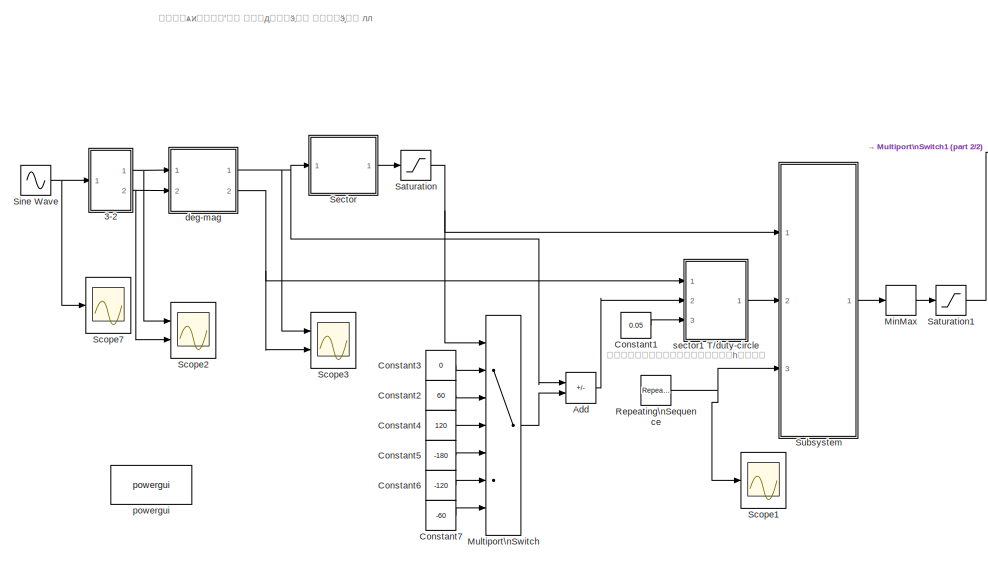
[diagram: root canvas - part 1/2, left side, full height]
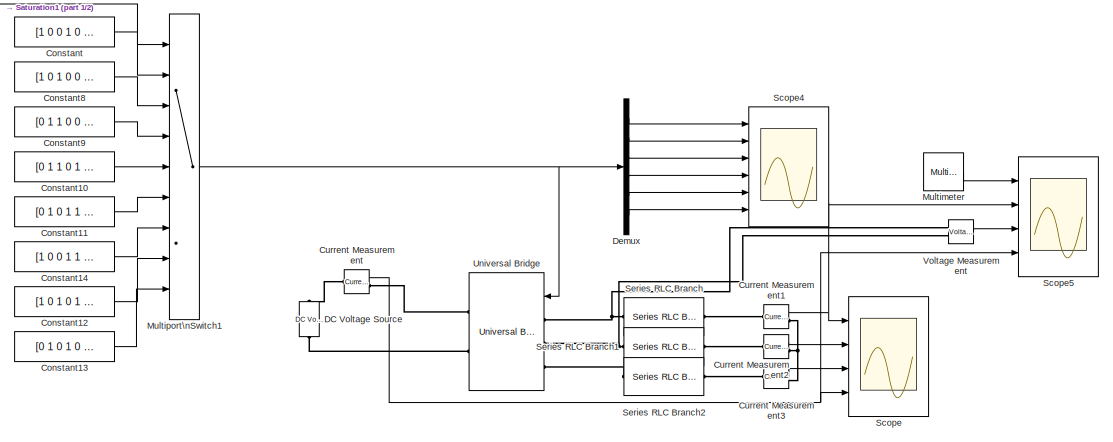
[diagram: root canvas - part 2/2, middle right region]
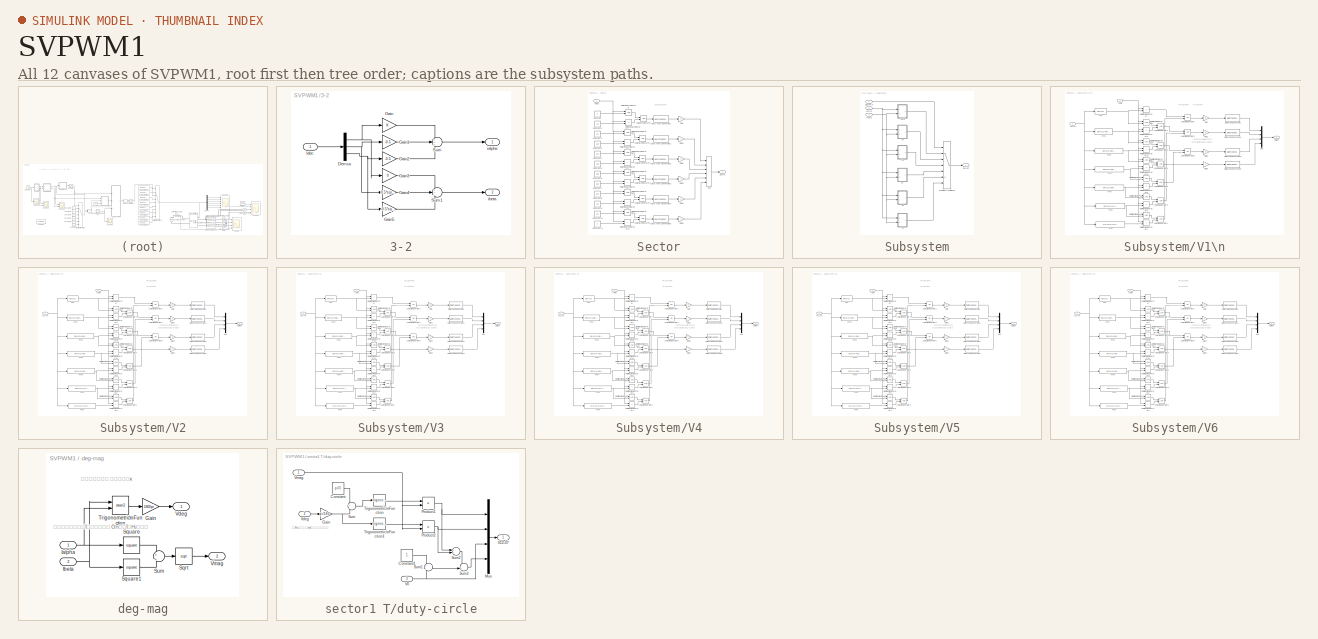
[diagram: thumbnail index - all 12 canvases of the model, root first then tree order]
MODEL SVPWM1
KIND model
BLOCK [SubSystem] 3-2
  Ports = [1, 2]
  RequestExecContextInheritance = off
  SID = 143
BLOCK [Demux] 3-2/Demux
  Outputs = 3
  Ports = [1, 3]
  SID = 129
BLOCK [Gain] 3-2/Gain
  SID = 130
BLOCK [Gain] 3-2/Gain1
  Gain = -0.5
  SID = 133
BLOCK [Gain] 3-2/Gain2
  Gain = -0.5
  SID = 134
BLOCK [Gain] 3-2/Gain3
  Gain = 0
  SID = 135
BLOCK [Gain] 3-2/Gain4
  Gain = 0.5*sqrt(3)
  SID = 136
BLOCK [Gain] 3-2/Gain5
  Gain = -0.5*sqrt(3)
  SID = 137
BLOCK [Inport] 3-2/Iabc
  SID = 144
BLOCK [Sum] 3-2/Sum
  Inputs = +++
  Ports = [3, 1]
  SID = 139
BLOCK [Sum] 3-2/Sum1
  Inputs = +++
  Ports = [3, 1]
  SID = 140
BLOCK [Outport] 3-2/ialpha
  SID = 145
  VectorParamsAs1DForOutWhenUnconnected = off
BLOCK [Outport] 3-2/ibeta
  Port = 2
  SID = 146
  VectorParamsAs1DForOutWhenUnconnected = off
BLOCK [Sum] Add
  IconShape = rectangular
  Inputs = +-
  Ports = [2, 1]
  SID = 256
BLOCK [Constant] Constant
  SID = 623
  Value = [1 0 0 1 0 1]
BLOCK [Constant] Constant1
  SID = 245
  Value = 0.05
BLOCK [Constant] Constant10
  SID = 627
  Value = [0 1 1 0 1 0]
BLOCK [Constant] Constant11
  SID = 628
  Value = [0 1 0 1 1 0]
BLOCK [Constant] Constant12
  SID = 629
  Value = [1 0 1 0 1 0]
BLOCK [Constant] Constant13
  SID = 630
  Value = [0 1 0 1 0 1]
BLOCK [Constant] Constant14
  SID = 631
  Value = [1 0 0 1 1 0]
BLOCK [Constant] Constant2
  SID = 249
  Value = 60
BLOCK [Constant] Constant3
  SID = 250
  Value = 0
BLOCK [Constant] Constant4
  SID = 251
  Value = 120
BLOCK [Constant] Constant5
  SID = 252
  Value = -180
BLOCK [Constant] Constant6
  SID = 253
  Value = -120
BLOCK [Constant] Constant7
  SID = 254
  Value = -60
BLOCK [Constant] Constant8
  SID = 625
  Value = [1 0 1 0 0 1]
BLOCK [Constant] Constant9
  SID = 626
  Value = [0 1 1 0 0 1]
BLOCK [Reference] Current Measurement  REF=powerlib/Measurements/Current Measurement
  OutputType = Complex
  PSBequivalent = 0
  PhasorSimulation = off
  Ports = [0, 1, 0, 0, 0, 1, 1]
  RTWMemSecDataConstants = Inherit from model
  RTWMemSecDataInternal = Inherit from model
  RTWMemSecDataParameters = Inherit from model
  RTWMemSecFuncExecute = Inherit from model
  RTWMemSecFuncInitTerm = Inherit from model
  SID = 632
  SourceBlock = powerlib/Measurements/Current Measurement
  SourceProductBaseCode = PS
  SourceType = Current Measurement
  UserDataPersistent = on
BLOCK [Reference] Current Measurement1  REF=powerlib/Measurements/Current Measurement
  OutputType = Complex
  PSBequivalent = 0
  PhasorSimulation = off
  Ports = [0, 1, 0, 0, 0, 1, 1]
  RTWMemSecDataConstants = Inherit from model
  RTWMemSecDataInternal = Inherit from model
  RTWMemSecDataParameters = Inherit from model
  RTWMemSecFuncExecute = Inherit from model
  RTWMemSecFuncInitTerm = Inherit from model
  SID = 645
  SourceBlock = powerlib/Measurements/Current Measurement
  SourceProductBaseCode = PS
  SourceType = Current Measurement
  UserDataPersistent = on
BLOCK [Reference] Current Measurement2  REF=powerlib/Measurements/Current Measurement
  OutputType = Complex
  PSBequivalent = 0
  PhasorSimulation = off
  Ports = [0, 1, 0, 0, 0, 1, 1]
  RTWMemSecDataConstants = Inherit from model
  RTWMemSecDataInternal = Inherit from model
  RTWMemSecDataParameters = Inherit from model
  RTWMemSecFuncExecute = Inherit from model
  RTWMemSecFuncInitTerm = Inherit from model
  SID = 646
  SourceBlock = powerlib/Measurements/Current Measurement
  SourceProductBaseCode = PS
  SourceType = Current Measurement
  UserDataPersistent = on
BLOCK [Reference] Current Measurement3  REF=powerlib/Measurements/Current Measurement
  OutputType = Complex
  PSBequivalent = 0
  PhasorSimulation = off
  Ports = [0, 1, 0, 0, 0, 1, 1]
  RTWMemSecDataConstants = Inherit from model
  RTWMemSecDataInternal = Inherit from model
  RTWMemSecDataParameters = Inherit from model
  RTWMemSecFuncExecute = Inherit from model
  RTWMemSecFuncInitTerm = Inherit from model
  SID = 647
  SourceBlock = powerlib/Measurements/Current Measurement
  SourceProductBaseCode = PS
  SourceType = Current Measurement
  UserDataPersistent = on
BLOCK [Reference] DC Voltage Source  REF=powerlib/Electrical\nSources/DC Voltage Source
  Amplitude = 100
  Measurements = None
  NameLocation = right
  Ports = [0, 0, 0, 0, 0, 1, 1]
  RTWMemSecDataConstants = Inherit from model
  RTWMemSecDataInternal = Inherit from model
  RTWMemSecDataParameters = Inherit from model
  RTWMemSecFuncExecute = Inherit from model
  RTWMemSecFuncInitTerm = Inherit from model
  SID = 633
  SourceBlock = powerlib/Electrical\nSources/DC Voltage Source
  SourceProductBaseCode = PS
  SourceType = DC Voltage Source
BLOCK [Demux] Demux
  Outputs = 6
  Ports = [1, 6]
  SID = 649
BLOCK [MinMax] MinMax
  Function = max
  Ports = [1, 1]
  SID = 620
BLOCK [Reference] Multimeter  REF=powerlib/Measurements/Multimeter
  AxesSetting = [0,0.1,-100,100]
  Display = 0
  Gain = 1
  L = 1
  OutputType = Complex
  PSBOutputType = 1
  PSBequivalent = 0
  PhasorSimulation = off
  Ports = [0, 1]
  RTWMemSecDataConstants = Inherit from model
  RTWMemSecDataInternal = Inherit from model
  RTWMemSecDataParameters = Inherit from model
  RTWMemSecFuncExecute = Inherit from model
  RTWMemSecFuncInitTerm = Inherit from model
  SID = 650
  SavedBlockNames = -11
  SourceBlock = powerlib/Measurements/Multimeter
  SourceProductBaseCode = PS
  SourceType = MultimeterPSB
  sel = 1
  yselected = {'Ub: Series RLC Branch'};
BLOCK [MultiPortSwitch] Multiport\nSwitch
  InputSameDT = off
  Inputs = 6
  Ports = [7, 1]
  SID = 246
  SaturateOnIntegerOverflow = off
BLOCK [MultiPortSwitch] Multiport\nSwitch1
  InputSameDT = off
  Inputs = 8
  Ports = [9, 1]
  SID = 622
  SaturateOnIntegerOverflow = off
BLOCK [Reference] Repeating\nSequence  REF=simulink/Sources/Repeating\nSequence
  Ports = [0, 1]
  RTWMemSecDataConstants = Inherit from model
  RTWMemSecDataInternal = Inherit from model
  RTWMemSecDataParameters = Inherit from model
  RTWMemSecFuncExecute = Inherit from model
  RTWMemSecFuncInitTerm = Inherit from model
  SID = 259
  SourceBlock = simulink/Sources/Repeating\nSequence
  SourceProductBaseCode = SL
  SourceType = Repeating table
  rep_seq_t = [0 1e-4]
  rep_seq_y = [0 1]
BLOCK [Saturate] Saturation
  LowerLimit = 1
  SID = 247
  UpperLimit = 6
BLOCK [Saturate] Saturation1
  LowerLimit = 1
  SID = 621
  UpperLimit = 8
BLOCK [Scope] Scope
  Floating = off
  NumInputPorts = 4
  Ports = [4]
  SID = 637
  ScopeSpecificationString = Simulink.scopes.TimeScopeBlockCfg('CurrentConfiguration', extmgr.ConfigurationSet(extmgr.Configuration('Core','General UI',true,'FigureColor',[0.941176470588235 0.941176470588235 0.941176470588235]),extmgr.Configuration('Core','Source UI',true),extmgr.Configuration('Sources','WiredSimulink',true,'DataLoggingVariableName','ScopeData1'),extmgr.Configuration('Visuals','Time Domain',true,'SerializedDi...<+2075ch>
BLOCK [Scope] Scope1
  Floating = off
  NumInputPorts = 1
  Ports = [1]
  SID = 209
  ScopeSpecificationString = Simulink.scopes.TimeScopeBlockCfg('CurrentConfiguration', extmgr.ConfigurationSet(extmgr.Configuration('Core','General UI',true,'FigureColor',[0.941176470588235 0.941176470588235 0.941176470588235]),extmgr.Configuration('Core','Source UI',true),extmgr.Configuration('Sources','WiredSimulink',true,'DataLoggingVariableName','ScopeData1'),extmgr.Configuration('Visuals','Time Domain',true,'SerializedDi...<+1917ch>
BLOCK [Scope] Scope2
  Floating = off
  NumInputPorts = 2
  Ports = [2]
  SID = 213
  ScopeSpecificationString = Simulink.scopes.TimeScopeBlockCfg('CurrentConfiguration', extmgr.ConfigurationSet(extmgr.Configuration('Core','General UI',true,'FigureColor',[0.941176470588235 0.941176470588235 0.941176470588235]),extmgr.Configuration('Core','Source UI',true),extmgr.Configuration('Sources','WiredSimulink',true,'DataLoggingVariableName','ScopeData2'),extmgr.Configuration('Visuals','Time Domain',true,'SerializedDi...<+1894ch>
BLOCK [Scope] Scope3
  Floating = off
  NumInputPorts = 2
  Ports = [2]
  SID = 218
  ScopeSpecificationString = Simulink.scopes.TimeScopeBlockCfg('CurrentConfiguration', extmgr.ConfigurationSet(extmgr.Configuration('Core','General UI',true,'FigureColor',[0.941176470588235 0.941176470588235 0.941176470588235]),extmgr.Configuration('Core','Source UI',true),extmgr.Configuration('Sources','WiredSimulink',true,'DataLoggingVariableName','ScopeData3'),extmgr.Configuration('Visuals','Time Domain',true,'SerializedDi...<+1935ch>
BLOCK [Scope] Scope4
  Floating = off
  NumInputPorts = 6
  Ports = [6]
  SID = 648
  ScopeSpecificationString = Simulink.scopes.TimeScopeBlockCfg('CurrentConfiguration', extmgr.ConfigurationSet(extmgr.Configuration('Core','General UI',true,'FigureColor',[0.941176470588235 0.941176470588235 0.941176470588235]),extmgr.Configuration('Core','Source UI',true),extmgr.Configuration('Sources','WiredSimulink',true,'DataLoggingVariableName','ScopeData2'),extmgr.Configuration('Visuals','Time Domain',true,'SerializedDi...<+5587ch>
BLOCK [Scope] Scope5
  Floating = off
  NumInputPorts = 4
  Ports = [4]
  SID = 653
  ScopeSpecificationString = Simulink.scopes.TimeScopeBlockCfg('CurrentConfiguration', extmgr.ConfigurationSet(extmgr.Configuration('Core','General UI',true,'FigureColor',[0.941176470588235 0.941176470588235 0.941176470588235]),extmgr.Configuration('Core','Source UI',true),extmgr.Configuration('Sources','WiredSimulink',true,'DataLoggingVariableName','ScopeData1'),extmgr.Configuration('Visuals','Time Domain',true,'SerializedDi...<+4296ch>
BLOCK [Scope] Scope7
  Floating = off
  NumInputPorts = 1
  Ports = [1]
  SID = 126
  ScopeSpecificationString = Simulink.scopes.TimeScopeBlockCfg('CurrentConfiguration', extmgr.ConfigurationSet(extmgr.Configuration('Core','General UI',true,'FigureColor',[0.941176470588235 0.941176470588235 0.941176470588235]),extmgr.Configuration('Core','Source UI',true),extmgr.Configuration('Sources','WiredSimulink',true,'DataLoggingVariableName','ScopeData3'),extmgr.Configuration('Visuals','Time Domain',true,'SerializedDi...<+1843ch>
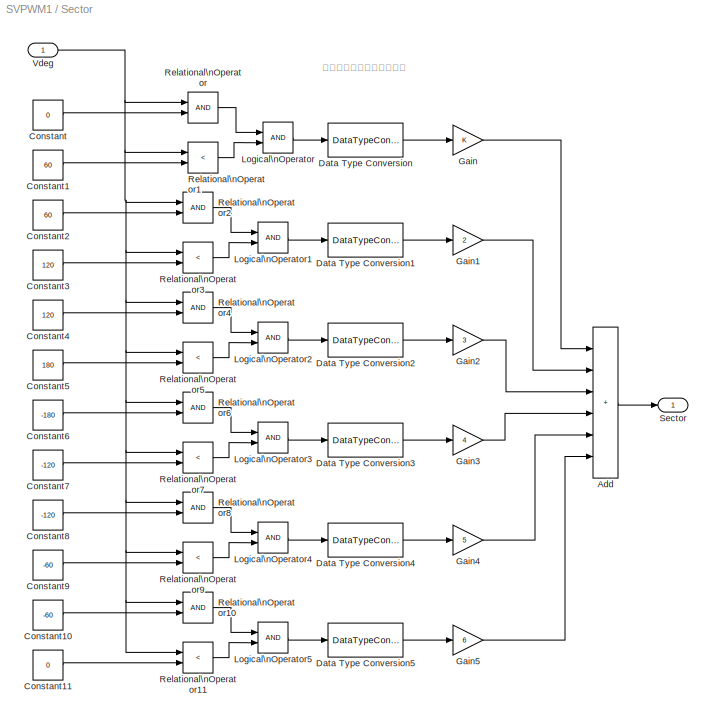
BLOCK [SubSystem] Sector
  Ports = [1, 1]
  RequestExecContextInheritance = off
  SID = 210
BLOCK [Sum] Sector/Add
  IconShape = rectangular
  Inputs = ++++++
  Ports = [6, 1]
  SID = 207
BLOCK [Constant] Sector/Constant
  SID = 163
  Value = 0
BLOCK [Constant] Sector/Constant1
  SID = 164
  Value = 60
BLOCK [Constant] Sector/Constant10
  SID = 173
  Value = -60
BLOCK [Constant] Sector/Constant11
  SID = 174
  Value = 0
BLOCK [Constant] Sector/Constant2
  SID = 165
  Value = 60
BLOCK [Constant] Sector/Constant3
  SID = 166
  Value = 120
BLOCK [Constant] Sector/Constant4
  SID = 167
  Value = 120
BLOCK [Constant] Sector/Constant5
  SID = 168
  Value = 180
BLOCK [Constant] Sector/Constant6
  SID = 169
  Value = -180
BLOCK [Constant] Sector/Constant7
  SID = 170
  Value = -120
BLOCK [Constant] Sector/Constant8
  SID = 171
  Value = -120
BLOCK [Constant] Sector/Constant9
  SID = 172
  Value = -60
BLOCK [DataTypeConversion] Sector/Data Type Conversion
  RndMeth = Floor
  SID = 180
  SaturateOnIntegerOverflow = off
BLOCK [DataTypeConversion] Sector/Data Type Conversion1
  RndMeth = Floor
  SID = 182
  SaturateOnIntegerOverflow = off
BLOCK [DataTypeConversion] Sector/Data Type Conversion2
  RndMeth = Floor
  SID = 187
  SaturateOnIntegerOverflow = off
BLOCK [DataTypeConversion] Sector/Data Type Conversion3
  RndMeth = Floor
  SID = 192
  SaturateOnIntegerOverflow = off
BLOCK [DataTypeConversion] Sector/Data Type Conversion4
  RndMeth = Floor
  SID = 197
  SaturateOnIntegerOverflow = off
BLOCK [DataTypeConversion] Sector/Data Type Conversion5
  RndMeth = Floor
  SID = 202
  SaturateOnIntegerOverflow = off
BLOCK [Gain] Sector/Gain
  SID = 181
BLOCK [Gain] Sector/Gain1
  Gain = 2
  SID = 183
BLOCK [Gain] Sector/Gain2
  Gain = 3
  SID = 188
BLOCK [Gain] Sector/Gain3
  Gain = 4
  SID = 193
BLOCK [Gain] Sector/Gain4
  Gain = 5
  SID = 198
BLOCK [Gain] Sector/Gain5
  Gain = 6
  SID = 203
BLOCK [Logic] Sector/Logical\nOperator
  AllPortsSameDT = off
  OutDataTypeStr = boolean
  Ports = [2, 1]
  SID = 179
BLOCK [Logic] Sector/Logical\nOperator1
  AllPortsSameDT = off
  OutDataTypeStr = boolean
  Ports = [2, 1]
  SID = 184
BLOCK [Logic] Sector/Logical\nOperator2
  AllPortsSameDT = off
  OutDataTypeStr = boolean
  Ports = [2, 1]
  SID = 189
BLOCK [Logic] Sector/Logical\nOperator3
  AllPortsSameDT = off
  OutDataTypeStr = boolean
  Ports = [2, 1]
  SID = 194
BLOCK [Logic] Sector/Logical\nOperator4
  AllPortsSameDT = off
  OutDataTypeStr = boolean
  Ports = [2, 1]
  SID = 199
BLOCK [Logic] Sector/Logical\nOperator5
  AllPortsSameDT = off
  OutDataTypeStr = boolean
  Ports = [2, 1]
  SID = 204
BLOCK [RelationalOperator] Sector/Relational\nOperator
  InputSameDT = off
  OutDataTypeStr = boolean
  Ports = [2, 1]
  SID = 176
BLOCK [RelationalOperator] Sector/Relational\nOperator1
  InputSameDT = off
  Operator = <
  OutDataTypeStr = boolean
  Ports = [2, 1]
  SID = 177
BLOCK [RelationalOperator] Sector/Relational\nOperator10
  InputSameDT = off
  OutDataTypeStr = boolean
  Ports = [2, 1]
  SID = 205
BLOCK [RelationalOperator] Sector/Relational\nOperator11
  InputSameDT = off
  Operator = <
  OutDataTypeStr = boolean
  Ports = [2, 1]
  SID = 206
BLOCK [RelationalOperator] Sector/Relational\nOperator2
  InputSameDT = off
  OutDataTypeStr = boolean
  Ports = [2, 1]
  SID = 185
BLOCK [RelationalOperator] Sector/Relational\nOperator3
  InputSameDT = off
  Operator = <
  OutDataTypeStr = boolean
  Ports = [2, 1]
  SID = 186
BLOCK [RelationalOperator] Sector/Relational\nOperator4
  InputSameDT = off
  OutDataTypeStr = boolean
  Ports = [2, 1]
  SID = 190
BLOCK [RelationalOperator] Sector/Relational\nOperator5
  InputSameDT = off
  Operator = <
  OutDataTypeStr = boolean
  Ports = [2, 1]
  SID = 191
BLOCK [RelationalOperator] Sector/Relational\nOperator6
  InputSameDT = off
  OutDataTypeStr = boolean
  Ports = [2, 1]
  SID = 195
BLOCK [RelationalOperator] Sector/Relational\nOperator7
  InputSameDT = off
  Operator = <
  OutDataTypeStr = boolean
  Ports = [2, 1]
  SID = 196
BLOCK [RelationalOperator] Sector/Relational\nOperator8
  InputSameDT = off
  OutDataTypeStr = boolean
  Ports = [2, 1]
  SID = 200
BLOCK [RelationalOperator] Sector/Relational\nOperator9
  InputSameDT = off
  Operator = <
  OutDataTypeStr = boolean
  Ports = [2, 1]
  SID = 201
BLOCK [Outport] Sector/Sector
  SID = 212
  VectorParamsAs1DForOutWhenUnconnected = off
BLOCK [Inport] Sector/Vdeg
  SID = 211
BLOCK [Reference] Series RLC Branch  REF=powerlib/Elements/Series RLC Branch
  BranchType = RL
  Capacitance = 1e-6
  Inductance = 5e-3
  InitialCurrent = 0
  InitialVoltage = 0
  LConnTagsString = __new0
  Measurements = Branch voltage
  Ports = [0, 0, 0, 0, 0, 1, 1]
  RConnTagsString = __new0
  Resistance = 2
  SID = 642
  SetiL0 = off
  Setx0 = off
  SourceBlock = powerlib/Elements/Series RLC Branch
  SourceProductBaseCode = PS
  SourceType = Series RLC Branch
BLOCK [Reference] Series RLC Branch1  REF=powerlib/Elements/Series RLC Branch
  BranchType = RL
  Capacitance = 1e-6
  Inductance = 5e-3
  InitialCurrent = 0
  InitialVoltage = 0
  LConnTagsString = __new0
  Measurements = None
  Ports = [0, 0, 0, 0, 0, 1, 1]
  RConnTagsString = __new0
  Resistance = 2
  SID = 643
  SetiL0 = off
  Setx0 = off
  SourceBlock = powerlib/Elements/Series RLC Branch
  SourceProductBaseCode = PS
  SourceType = Series RLC Branch
BLOCK [Reference] Series RLC Branch2  REF=powerlib/Elements/Series RLC Branch
  BranchType = RL
  Capacitance = 1e-6
  Inductance = 5e-3
  InitialCurrent = 0
  InitialVoltage = 0
  LConnTagsString = __new0
  Measurements = None
  Ports = [0, 0, 0, 0, 0, 1, 1]
  RConnTagsString = __new0
  Resistance = 2
  SID = 644
  SetiL0 = off
  Setx0 = off
  SourceBlock = powerlib/Elements/Series RLC Branch
  SourceProductBaseCode = PS
  SourceType = Series RLC Branch
BLOCK [Sin] Sine Wave
  Amplitude = 0.4
  Frequency = 2*pi*50
  Phase = [0 -2*pi/3 2*pi/3]
  Ports = [0, 1]
  SID = 128
  SampleTime = 1e-6
BLOCK [SubSystem] Subsystem
  Ports = [3, 1]
  RequestExecContextInheritance = off
  SID = 615
BLOCK [MultiPortSwitch] Subsystem/Multiport\nSwitch1
  InputSameDT = off
  Inputs = 6
  Ports = [7, 1]
  SID = 612
  SaturateOnIntegerOverflow = off
BLOCK [Inport] Subsystem/Sector\n
  SID = 616
BLOCK [Inport] Subsystem/V12-07
  Port = 2
  SID = 617
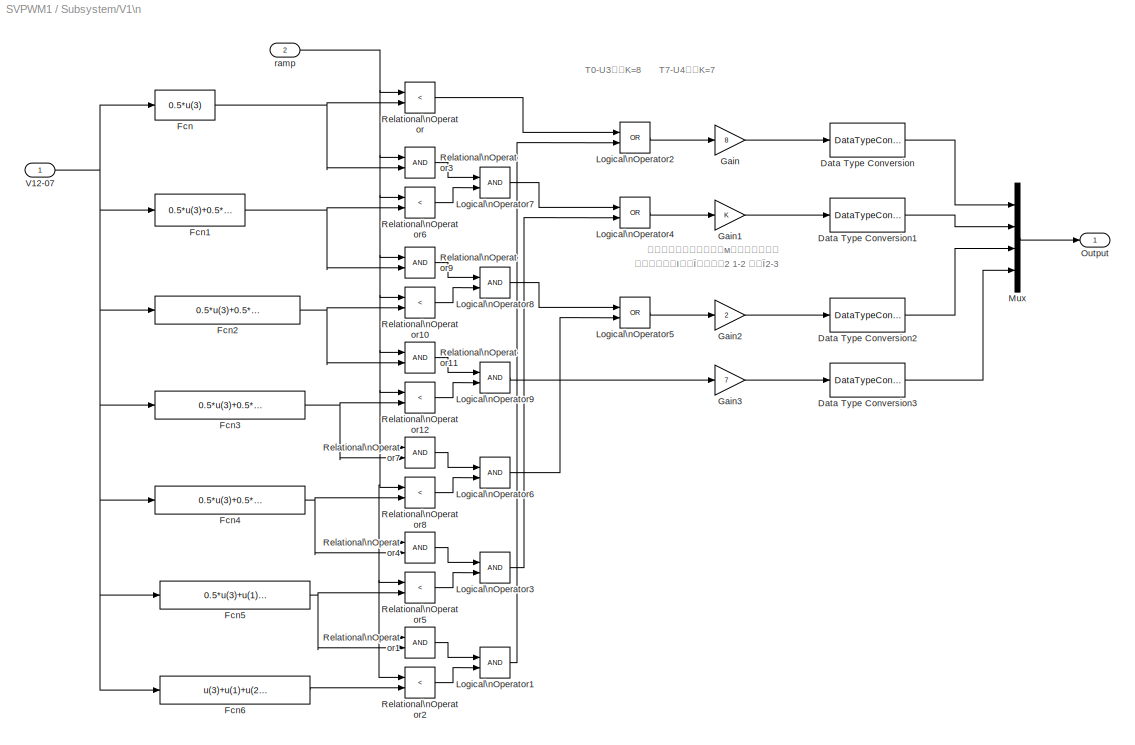
BLOCK [SubSystem] Subsystem/V1\n
  Ports = [2, 1]
  RequestExecContextInheritance = off
  SID = 330
BLOCK [DataTypeConversion] Subsystem/V1\n/Data Type Conversion
  OutDataTypeStr = double
  RndMeth = Floor
  SID = 312
  SaturateOnIntegerOverflow = off
BLOCK [DataTypeConversion] Subsystem/V1\n/Data Type Conversion1
  OutDataTypeStr = double
  RndMeth = Floor
  SID = 313
  SaturateOnIntegerOverflow = off
BLOCK [DataTypeConversion] Subsystem/V1\n/Data Type Conversion2
  OutDataTypeStr = double
  RndMeth = Floor
  SID = 314
  SaturateOnIntegerOverflow = off
BLOCK [DataTypeConversion] Subsystem/V1\n/Data Type Conversion3
  OutDataTypeStr = double
  RndMeth = Floor
  SID = 315
  SaturateOnIntegerOverflow = off
BLOCK [Fcn] Subsystem/V1\n/Fcn
  Expr = 0.5*u(3)
  SID = 265
BLOCK [Fcn] Subsystem/V1\n/Fcn1
  Expr = 0.5*u(3)+0.5*u(1)
  SID = 266
BLOCK [Fcn] Subsystem/V1\n/Fcn2
  Expr = 0.5*u(3)+0.5*u(1)+0.5*u(2)
  SID = 267
BLOCK [Fcn] Subsystem/V1\n/Fcn3
  Expr = 0.5*u(3)+0.5*u(1)+0.5*u(2)+u(4)
  SID = 268
BLOCK [Fcn] Subsystem/V1\n/Fcn4
  Expr = 0.5*u(3)+0.5*u(1)+u(2)+u(4)
  SID = 269
BLOCK [Fcn] Subsystem/V1\n/Fcn5
  Expr = 0.5*u(3)+u(1)+u(2)+u(4)
  SID = 270
BLOCK [Fcn] Subsystem/V1\n/Fcn6
  Expr = u(3)+u(1)+u(2)+u(4)
  SID = 271
BLOCK [Gain] Subsystem/V1\n/Gain
  Gain = 8
  SID = 287
BLOCK [Gain] Subsystem/V1\n/Gain1
  SID = 292
BLOCK [Gain] Subsystem/V1\n/Gain2
  Gain = 2
  SID = 294
BLOCK [Gain] Subsystem/V1\n/Gain3
  Gain = 7
  SID = 309
BLOCK [Logic] Subsystem/V1\n/Logical\nOperator1
  AllPortsSameDT = off
  OutDataTypeStr = boolean
  Ports = [2, 1]
  SID = 285
BLOCK [Logic] Subsystem/V1\n/Logical\nOperator2
  AllPortsSameDT = off
  Operator = OR
  OutDataTypeStr = boolean
  Ports = [2, 1]
  SID = 286
BLOCK [Logic] Subsystem/V1\n/Logical\nOperator3
  AllPortsSameDT = off
  OutDataTypeStr = boolean
  Ports = [2, 1]
  SID = 289
BLOCK [Logic] Subsystem/V1\n/Logical\nOperator4
  AllPortsSameDT = off
  Operator = OR
  OutDataTypeStr = boolean
  Ports = [2, 1]
  SID = 293
BLOCK [Logic] Subsystem/V1\n/Logical\nOperator5
  AllPortsSameDT = off
  Operator = OR
  OutDataTypeStr = boolean
  Ports = [2, 1]
  SID = 295
BLOCK [Logic] Subsystem/V1\n/Logical\nOperator6
  AllPortsSameDT = off
  OutDataTypeStr = boolean
  Ports = [2, 1]
  SID = 297
BLOCK [Logic] Subsystem/V1\n/Logical\nOperator7
  AllPortsSameDT = off
  OutDataTypeStr = boolean
  Ports = [2, 1]
  SID = 300
BLOCK [Logic] Subsystem/V1\n/Logical\nOperator8
  AllPortsSameDT = off
  OutDataTypeStr = boolean
  Ports = [2, 1]
  SID = 303
BLOCK [Logic] Subsystem/V1\n/Logical\nOperator9
  AllPortsSameDT = off
  OutDataTypeStr = boolean
  Ports = [2, 1]
  SID = 306
BLOCK [Mux] Subsystem/V1\n/Mux
  DisplayOption = bar
  Ports = [4, 1]
  SID = 316
BLOCK [Outport] Subsystem/V1\n/Output
  SID = 333
  VectorParamsAs1DForOutWhenUnconnected = off
BLOCK [RelationalOperator] Subsystem/V1\n/Relational\nOperator
  InputSameDT = off
  Operator = <
  OutDataTypeStr = boolean
  Ports = [2, 1]
  SID = 272
BLOCK [RelationalOperator] Subsystem/V1\n/Relational\nOperator1
  InputSameDT = off
  OutDataTypeStr = boolean
  Ports = [2, 1]
  SID = 283
BLOCK [RelationalOperator] Subsystem/V1\n/Relational\nOperator10
  InputSameDT = off
  Operator = <
  OutDataTypeStr = boolean
  Ports = [2, 1]
  SID = 305
BLOCK [RelationalOperator] Subsystem/V1\n/Relational\nOperator11
  InputSameDT = off
  OutDataTypeStr = boolean
  Ports = [2, 1]
  SID = 307
BLOCK [RelationalOperator] Subsystem/V1\n/Relational\nOperator12
  InputSameDT = off
  Operator = <
  OutDataTypeStr = boolean
  Ports = [2, 1]
  SID = 308
BLOCK [RelationalOperator] Subsystem/V1\n/Relational\nOperator2
  InputSameDT = off
  Operator = <
  OutDataTypeStr = boolean
  Ports = [2, 1]
  SID = 284
BLOCK [RelationalOperator] Subsystem/V1\n/Relational\nOperator3
  InputSameDT = off
  OutDataTypeStr = boolean
  Ports = [2, 1]
  SID = 301
BLOCK [RelationalOperator] Subsystem/V1\n/Relational\nOperator4
  InputSameDT = off
  OutDataTypeStr = boolean
  Ports = [2, 1]
  SID = 290
BLOCK [RelationalOperator] Subsystem/V1\n/Relational\nOperator5
  InputSameDT = off
  Operator = <
  OutDataTypeStr = boolean
  Ports = [2, 1]
  SID = 291
BLOCK [RelationalOperator] Subsystem/V1\n/Relational\nOperator6
  InputSameDT = off
  Operator = <
  OutDataTypeStr = boolean
  Ports = [2, 1]
  SID = 302
BLOCK [RelationalOperator] Subsystem/V1\n/Relational\nOperator7
  InputSameDT = off
  OutDataTypeStr = boolean
  Ports = [2, 1]
  SID = 298
BLOCK [RelationalOperator] Subsystem/V1\n/Relational\nOperator8
  InputSameDT = off
  Operator = <
  OutDataTypeStr = boolean
  Ports = [2, 1]
  SID = 299
BLOCK [RelationalOperator] Subsystem/V1\n/Relational\nOperator9
  InputSameDT = off
  OutDataTypeStr = boolean
  Ports = [2, 1]
  SID = 304
BLOCK [Inport] Subsystem/V1\n/V12-07
  SID = 331
BLOCK [Inport] Subsystem/V1\n/ramp
  Port = 2
  SID = 332
BLOCK [SubSystem] Subsystem/V2
  Ports = [2, 1]
  RequestExecContextInheritance = off
  SID = 334
BLOCK [DataTypeConversion] Subsystem/V2/Data Type Conversion
  OutDataTypeStr = double
  RndMeth = Floor
  SID = 337
  SaturateOnIntegerOverflow = off
BLOCK [DataTypeConversion] Subsystem/V2/Data Type Conversion1
  OutDataTypeStr = double
  RndMeth = Floor
  SID = 338
  SaturateOnIntegerOverflow = off
BLOCK [DataTypeConversion] Subsystem/V2/Data Type Conversion2
  OutDataTypeStr = double
  RndMeth = Floor
  SID = 339
  SaturateOnIntegerOverflow = off
BLOCK [DataTypeConversion] Subsystem/V2/Data Type Conversion3
  OutDataTypeStr = double
  RndMeth = Floor
  SID = 340
  SaturateOnIntegerOverflow = off
BLOCK [Fcn] Subsystem/V2/Fcn
  Expr = 0.5*u(3)
  SID = 341
BLOCK [Fcn] Subsystem/V2/Fcn1
  Expr = 0.5*u(3)+0.5*u(1)
  SID = 342
BLOCK [Fcn] Subsystem/V2/Fcn2
  Expr = 0.5*u(3)+0.5*u(1)+0.5*u(2)
  SID = 343
BLOCK [Fcn] Subsystem/V2/Fcn3
  Expr = 0.5*u(3)+0.5*u(1)+0.5*u(2)+u(4)
  SID = 344
BLOCK [Fcn] Subsystem/V2/Fcn4
  Expr = 0.5*u(3)+0.5*u(1)+u(2)+u(4)
  SID = 345
BLOCK [Fcn] Subsystem/V2/Fcn5
  Expr = 0.5*u(3)+u(1)+u(2)+u(4)
  SID = 346
BLOCK [Fcn] Subsystem/V2/Fcn6
  Expr = u(3)+u(1)+u(2)+u(4)
  SID = 347
BLOCK [Gain] Subsystem/V2/Gain
  Gain = 8
  SID = 348
BLOCK [Gain] Subsystem/V2/Gain1
  Gain = 2
  SID = 349
BLOCK [Gain] Subsystem/V2/Gain2
  Gain = 3
  SID = 350
BLOCK [Gain] Subsystem/V2/Gain3
  Gain = 7
  SID = 351
BLOCK [Logic] Subsystem/V2/Logical\nOperator1
  AllPortsSameDT = off
  OutDataTypeStr = boolean
  Ports = [2, 1]
  SID = 352
BLOCK [Logic] Subsystem/V2/Logical\nOperator2
  AllPortsSameDT = off
  Operator = OR
  OutDataTypeStr = boolean
  Ports = [2, 1]
  SID = 353
BLOCK [Logic] Subsystem/V2/Logical\nOperator3
  AllPortsSameDT = off
  OutDataTypeStr = boolean
  Ports = [2, 1]
  SID = 354
BLOCK [Logic] Subsystem/V2/Logical\nOperator4
  AllPortsSameDT = off
  Operator = OR
  OutDataTypeStr = boolean
  Ports = [2, 1]
  SID = 355
BLOCK [Logic] Subsystem/V2/Logical\nOperator5
  AllPortsSameDT = off
  Operator = OR
  OutDataTypeStr = boolean
  Ports = [2, 1]
  SID = 356
BLOCK [Logic] Subsystem/V2/Logical\nOperator6
  AllPortsSameDT = off
  OutDataTypeStr = boolean
  Ports = [2, 1]
  SID = 357
BLOCK [Logic] Subsystem/V2/Logical\nOperator7
  AllPortsSameDT = off
  OutDataTypeStr = boolean
  Ports = [2, 1]
  SID = 358
BLOCK [Logic] Subsystem/V2/Logical\nOperator8
  AllPortsSameDT = off
  OutDataTypeStr = boolean
  Ports = [2, 1]
  SID = 359
BLOCK [Logic] Subsystem/V2/Logical\nOperator9
  AllPortsSameDT = off
  OutDataTypeStr = boolean
  Ports = [2, 1]
  SID = 360
BLOCK [Mux] Subsystem/V2/Mux
  DisplayOption = bar
  Ports = [4, 1]
  SID = 361
BLOCK [Outport] Subsystem/V2/Output
  SID = 375
  VectorParamsAs1DForOutWhenUnconnected = off
BLOCK [RelationalOperator] Subsystem/V2/Relational\nOperator
  InputSameDT = off
  Operator = <
  OutDataTypeStr = boolean
  Ports = [2, 1]
  SID = 362
BLOCK [RelationalOperator] Subsystem/V2/Relational\nOperator1
  InputSameDT = off
  OutDataTypeStr = boolean
  Ports = [2, 1]
  SID = 363
BLOCK [RelationalOperator] Subsystem/V2/Relational\nOperator10
  InputSameDT = off
  Operator = <
  OutDataTypeStr = boolean
  Ports = [2, 1]
  SID = 364
BLOCK [RelationalOperator] Subsystem/V2/Relational\nOperator11
  InputSameDT = off
  OutDataTypeStr = boolean
  Ports = [2, 1]
  SID = 365
BLOCK [RelationalOperator] Subsystem/V2/Relational\nOperator12
  InputSameDT = off
  Operator = <
  OutDataTypeStr = boolean
  Ports = [2, 1]
  SID = 366
BLOCK [RelationalOperator] Subsystem/V2/Relational\nOperator2
  InputSameDT = off
  Operator = <
  OutDataTypeStr = boolean
  Ports = [2, 1]
  SID = 367
BLOCK [RelationalOperator] Subsystem/V2/Relational\nOperator3
  InputSameDT = off
  OutDataTypeStr = boolean
  Ports = [2, 1]
  SID = 368
BLOCK [RelationalOperator] Subsystem/V2/Relational\nOperator4
  InputSameDT = off
  OutDataTypeStr = boolean
  Ports = [2, 1]
  SID = 369
BLOCK [RelationalOperator] Subsystem/V2/Relational\nOperator5
  InputSameDT = off
  Operator = <
  OutDataTypeStr = boolean
  Ports = [2, 1]
  SID = 370
BLOCK [RelationalOperator] Subsystem/V2/Relational\nOperator6
  InputSameDT = off
  Operator = <
  OutDataTypeStr = boolean
  Ports = [2, 1]
  SID = 371
BLOCK [RelationalOperator] Subsystem/V2/Relational\nOperator7
  InputSameDT = off
  OutDataTypeStr = boolean
  Ports = [2, 1]
  SID = 372
BLOCK [RelationalOperator] Subsystem/V2/Relational\nOperator8
  InputSameDT = off
  Operator = <
  OutDataTypeStr = boolean
  Ports = [2, 1]
  SID = 373
BLOCK [RelationalOperator] Subsystem/V2/Relational\nOperator9
  InputSameDT = off
  OutDataTypeStr = boolean
  Ports = [2, 1]
  SID = 374
BLOCK [Inport] Subsystem/V2/V12-07
  SID = 335
BLOCK [Inport] Subsystem/V2/ramp
  Port = 2
  SID = 336
BLOCK [SubSystem] Subsystem/V3
  Ports = [2, 1]
  RequestExecContextInheritance = off
  SID = 380
BLOCK [DataTypeConversion] Subsystem/V3/Data Type Conversion
  OutDataTypeStr = double
  RndMeth = Floor
  SID = 383
  SaturateOnIntegerOverflow = off
BLOCK [DataTypeConversion] Subsystem/V3/Data Type Conversion1
  OutDataTypeStr = double
  RndMeth = Floor
  SID = 384
  SaturateOnIntegerOverflow = off
BLOCK [DataTypeConversion] Subsystem/V3/Data Type Conversion2
  OutDataTypeStr = double
  RndMeth = Floor
  SID = 385
  SaturateOnIntegerOverflow = off
BLOCK [DataTypeConversion] Subsystem/V3/Data Type Conversion3
  OutDataTypeStr = double
  RndMeth = Floor
  SID = 386
  SaturateOnIntegerOverflow = off
BLOCK [Fcn] Subsystem/V3/Fcn
  Expr = 0.5*u(3)
  SID = 387
BLOCK [Fcn] Subsystem/V3/Fcn1
  Expr = 0.5*u(3)+0.5*u(1)
  SID = 388
BLOCK [Fcn] Subsystem/V3/Fcn2
  Expr = 0.5*u(3)+0.5*u(1)+0.5*u(2)
  SID = 389
BLOCK [Fcn] Subsystem/V3/Fcn3
  Expr = 0.5*u(3)+0.5*u(1)+0.5*u(2)+u(4)
  SID = 390
BLOCK [Fcn] Subsystem/V3/Fcn4
  Expr = 0.5*u(3)+0.5*u(1)+u(2)+u(4)
  SID = 391
BLOCK [Fcn] Subsystem/V3/Fcn5
  Expr = 0.5*u(3)+u(1)+u(2)+u(4)
  SID = 392
BLOCK [Fcn] Subsystem/V3/Fcn6
  Expr = u(3)+u(1)+u(2)+u(4)
  SID = 393
BLOCK [Gain] Subsystem/V3/Gain
  Gain = 8
  SID = 394
BLOCK [Gain] Subsystem/V3/Gain1
  Gain = 3
  SID = 395
BLOCK [Gain] Subsystem/V3/Gain2
  Gain = 4
  SID = 396
BLOCK [Gain] Subsystem/V3/Gain3
  Gain = 7
  SID = 397
BLOCK [Logic] Subsystem/V3/Logical\nOperator1
  AllPortsSameDT = off
  OutDataTypeStr = boolean
  Ports = [2, 1]
  SID = 398
BLOCK [Logic] Subsystem/V3/Logical\nOperator2
  AllPortsSameDT = off
  Operator = OR
  OutDataTypeStr = boolean
  Ports = [2, 1]
  SID = 399
BLOCK [Logic] Subsystem/V3/Logical\nOperator3
  AllPortsSameDT = off
  OutDataTypeStr = boolean
  Ports = [2, 1]
  SID = 400
BLOCK [Logic] Subsystem/V3/Logical\nOperator4
  AllPortsSameDT = off
  Operator = OR
  OutDataTypeStr = boolean
  Ports = [2, 1]
  SID = 401
BLOCK [Logic] Subsystem/V3/Logical\nOperator5
  AllPortsSameDT = off
  Operator = OR
  OutDataTypeStr = boolean
  Ports = [2, 1]
  SID = 402
BLOCK [Logic] Subsystem/V3/Logical\nOperator6
  AllPortsSameDT = off
  OutDataTypeStr = boolean
  Ports = [2, 1]
  SID = 403
BLOCK [Logic] Subsystem/V3/Logical\nOperator7
  AllPortsSameDT = off
  OutDataTypeStr = boolean
  Ports = [2, 1]
  SID = 404
BLOCK [Logic] Subsystem/V3/Logical\nOperator8
  AllPortsSameDT = off
  OutDataTypeStr = boolean
  Ports = [2, 1]
  SID = 405
BLOCK [Logic] Subsystem/V3/Logical\nOperator9
  AllPortsSameDT = off
  OutDataTypeStr = boolean
  Ports = [2, 1]
  SID = 406
BLOCK [Mux] Subsystem/V3/Mux
  DisplayOption = bar
  Ports = [4, 1]
  SID = 407
BLOCK [Outport] Subsystem/V3/Output
  SID = 421
  VectorParamsAs1DForOutWhenUnconnected = off
BLOCK [RelationalOperator] Subsystem/V3/Relational\nOperator
  InputSameDT = off
  Operator = <
  OutDataTypeStr = boolean
  Ports = [2, 1]
  SID = 408
BLOCK [RelationalOperator] Subsystem/V3/Relational\nOperator1
  InputSameDT = off
  OutDataTypeStr = boolean
  Ports = [2, 1]
  SID = 409
BLOCK [RelationalOperator] Subsystem/V3/Relational\nOperator10
  InputSameDT = off
  Operator = <
  OutDataTypeStr = boolean
  Ports = [2, 1]
  SID = 410
BLOCK [RelationalOperator] Subsystem/V3/Relational\nOperator11
  InputSameDT = off
  OutDataTypeStr = boolean
  Ports = [2, 1]
  SID = 411
BLOCK [RelationalOperator] Subsystem/V3/Relational\nOperator12
  InputSameDT = off
  Operator = <
  OutDataTypeStr = boolean
  Ports = [2, 1]
  SID = 412
BLOCK [RelationalOperator] Subsystem/V3/Relational\nOperator2
  InputSameDT = off
  Operator = <
  OutDataTypeStr = boolean
  Ports = [2, 1]
  SID = 413
BLOCK [RelationalOperator] Subsystem/V3/Relational\nOperator3
  InputSameDT = off
  OutDataTypeStr = boolean
  Ports = [2, 1]
  SID = 414
BLOCK [RelationalOperator] Subsystem/V3/Relational\nOperator4
  InputSameDT = off
  OutDataTypeStr = boolean
  Ports = [2, 1]
  SID = 415
BLOCK [RelationalOperator] Subsystem/V3/Relational\nOperator5
  InputSameDT = off
  Operator = <
  OutDataTypeStr = boolean
  Ports = [2, 1]
  SID = 416
BLOCK [RelationalOperator] Subsystem/V3/Relational\nOperator6
  InputSameDT = off
  Operator = <
  OutDataTypeStr = boolean
  Ports = [2, 1]
  SID = 417
BLOCK [RelationalOperator] Subsystem/V3/Relational\nOperator7
  InputSameDT = off
  OutDataTypeStr = boolean
  Ports = [2, 1]
  SID = 418
BLOCK [RelationalOperator] Subsystem/V3/Relational\nOperator8
  InputSameDT = off
  Operator = <
  OutDataTypeStr = boolean
  Ports = [2, 1]
  SID = 419
BLOCK [RelationalOperator] Subsystem/V3/Relational\nOperator9
  InputSameDT = off
  OutDataTypeStr = boolean
  Ports = [2, 1]
  SID = 420
BLOCK [Inport] Subsystem/V3/V12-07
  SID = 381
BLOCK [Inport] Subsystem/V3/ramp
  Port = 2
  SID = 382
BLOCK [SubSystem] Subsystem/V4
  Ports = [2, 1]
  RequestExecContextInheritance = off
  SID = 426
BLOCK [DataTypeConversion] Subsystem/V4/Data Type Conversion
  OutDataTypeStr = double
  RndMeth = Floor
  SID = 429
  SaturateOnIntegerOverflow = off
BLOCK [DataTypeConversion] Subsystem/V4/Data Type Conversion1
  OutDataTypeStr = double
  RndMeth = Floor
  SID = 430
  SaturateOnIntegerOverflow = off
BLOCK [DataTypeConversion] Subsystem/V4/Data Type Conversion2
  OutDataTypeStr = double
  RndMeth = Floor
  SID = 431
  SaturateOnIntegerOverflow = off
BLOCK [DataTypeConversion] Subsystem/V4/Data Type Conversion3
  OutDataTypeStr = double
  RndMeth = Floor
  SID = 432
  SaturateOnIntegerOverflow = off
BLOCK [Fcn] Subsystem/V4/Fcn
  Expr = 0.5*u(3)
  SID = 433
BLOCK [Fcn] Subsystem/V4/Fcn1
  Expr = 0.5*u(3)+0.5*u(1)
  SID = 434
BLOCK [Fcn] Subsystem/V4/Fcn2
  Expr = 0.5*u(3)+0.5*u(1)+0.5*u(2)
  SID = 435
BLOCK [Fcn] Subsystem/V4/Fcn3
  Expr = 0.5*u(3)+0.5*u(1)+0.5*u(2)+u(4)
  SID = 436
BLOCK [Fcn] Subsystem/V4/Fcn4
  Expr = 0.5*u(3)+0.5*u(1)+u(2)+u(4)
  SID = 437
BLOCK [Fcn] Subsystem/V4/Fcn5
  Expr = 0.5*u(3)+u(1)+u(2)+u(4)
  SID = 438
BLOCK [Fcn] Subsystem/V4/Fcn6
  Expr = u(3)+u(1)+u(2)+u(4)
  SID = 439
BLOCK [Gain] Subsystem/V4/Gain
  Gain = 8
  SID = 440
BLOCK [Gain] Subsystem/V4/Gain1
  Gain = 4
  SID = 441
BLOCK [Gain] Subsystem/V4/Gain2
  Gain = 5
  SID = 442
BLOCK [Gain] Subsystem/V4/Gain3
  Gain = 7
  SID = 443
BLOCK [Logic] Subsystem/V4/Logical\nOperator1
  AllPortsSameDT = off
  OutDataTypeStr = boolean
  Ports = [2, 1]
  SID = 444
BLOCK [Logic] Subsystem/V4/Logical\nOperator2
  AllPortsSameDT = off
  Operator = OR
  OutDataTypeStr = boolean
  Ports = [2, 1]
  SID = 445
BLOCK [Logic] Subsystem/V4/Logical\nOperator3
  AllPortsSameDT = off
  OutDataTypeStr = boolean
  Ports = [2, 1]
  SID = 446
BLOCK [Logic] Subsystem/V4/Logical\nOperator4
  AllPortsSameDT = off
  Operator = OR
  OutDataTypeStr = boolean
  Ports = [2, 1]
  SID = 447
BLOCK [Logic] Subsystem/V4/Logical\nOperator5
  AllPortsSameDT = off
  Operator = OR
  OutDataTypeStr = boolean
  Ports = [2, 1]
  SID = 448
BLOCK [Logic] Subsystem/V4/Logical\nOperator6
  AllPortsSameDT = off
  OutDataTypeStr = boolean
  Ports = [2, 1]
  SID = 449
BLOCK [Logic] Subsystem/V4/Logical\nOperator7
  AllPortsSameDT = off
  OutDataTypeStr = boolean
  Ports = [2, 1]
  SID = 450
BLOCK [Logic] Subsystem/V4/Logical\nOperator8
  AllPortsSameDT = off
  OutDataTypeStr = boolean
  Ports = [2, 1]
  SID = 451
BLOCK [Logic] Subsystem/V4/Logical\nOperator9
  AllPortsSameDT = off
  OutDataTypeStr = boolean
  Ports = [2, 1]
  SID = 452
BLOCK [Mux] Subsystem/V4/Mux
  DisplayOption = bar
  Ports = [4, 1]
  SID = 453
BLOCK [Outport] Subsystem/V4/Output
  SID = 467
  VectorParamsAs1DForOutWhenUnconnected = off
BLOCK [RelationalOperator] Subsystem/V4/Relational\nOperator
  InputSameDT = off
  Operator = <
  OutDataTypeStr = boolean
  Ports = [2, 1]
  SID = 454
BLOCK [RelationalOperator] Subsystem/V4/Relational\nOperator1
  InputSameDT = off
  OutDataTypeStr = boolean
  Ports = [2, 1]
  SID = 455
BLOCK [RelationalOperator] Subsystem/V4/Relational\nOperator10
  InputSameDT = off
  Operator = <
  OutDataTypeStr = boolean
  Ports = [2, 1]
  SID = 456
BLOCK [RelationalOperator] Subsystem/V4/Relational\nOperator11
  InputSameDT = off
  OutDataTypeStr = boolean
  Ports = [2, 1]
  SID = 457
BLOCK [RelationalOperator] Subsystem/V4/Relational\nOperator12
  InputSameDT = off
  Operator = <
  OutDataTypeStr = boolean
  Ports = [2, 1]
  SID = 458
BLOCK [RelationalOperator] Subsystem/V4/Relational\nOperator2
  InputSameDT = off
  Operator = <
  OutDataTypeStr = boolean
  Ports = [2, 1]
  SID = 459
BLOCK [RelationalOperator] Subsystem/V4/Relational\nOperator3
  InputSameDT = off
  OutDataTypeStr = boolean
  Ports = [2, 1]
  SID = 460
BLOCK [RelationalOperator] Subsystem/V4/Relational\nOperator4
  InputSameDT = off
  OutDataTypeStr = boolean
  Ports = [2, 1]
  SID = 461
BLOCK [RelationalOperator] Subsystem/V4/Relational\nOperator5
  InputSameDT = off
  Operator = <
  OutDataTypeStr = boolean
  Ports = [2, 1]
  SID = 462
BLOCK [RelationalOperator] Subsystem/V4/Relational\nOperator6
  InputSameDT = off
  Operator = <
  OutDataTypeStr = boolean
  Ports = [2, 1]
  SID = 463
BLOCK [RelationalOperator] Subsystem/V4/Relational\nOperator7
  InputSameDT = off
  OutDataTypeStr = boolean
  Ports = [2, 1]
  SID = 464
BLOCK [RelationalOperator] Subsystem/V4/Relational\nOperator8
  InputSameDT = off
  Operator = <
  OutDataTypeStr = boolean
  Ports = [2, 1]
  SID = 465
BLOCK [RelationalOperator] Subsystem/V4/Relational\nOperator9
  InputSameDT = off
  OutDataTypeStr = boolean
  Ports = [2, 1]
  SID = 466
BLOCK [Inport] Subsystem/V4/V12-07
  SID = 427
BLOCK [Inport] Subsystem/V4/ramp
  Port = 2
  SID = 428
BLOCK [SubSystem] Subsystem/V5
  Ports = [2, 1]
  RequestExecContextInheritance = off
  SID = 472
BLOCK [DataTypeConversion] Subsystem/V5/Data Type Conversion
  OutDataTypeStr = double
  RndMeth = Floor
  SID = 475
  SaturateOnIntegerOverflow = off
BLOCK [DataTypeConversion] Subsystem/V5/Data Type Conversion1
  OutDataTypeStr = double
  RndMeth = Floor
  SID = 476
  SaturateOnIntegerOverflow = off
BLOCK [DataTypeConversion] Subsystem/V5/Data Type Conversion2
  OutDataTypeStr = double
  RndMeth = Floor
  SID = 477
  SaturateOnIntegerOverflow = off
BLOCK [DataTypeConversion] Subsystem/V5/Data Type Conversion3
  OutDataTypeStr = double
  RndMeth = Floor
  SID = 478
  SaturateOnIntegerOverflow = off
BLOCK [Fcn] Subsystem/V5/Fcn
  Expr = 0.5*u(3)
  SID = 479
BLOCK [Fcn] Subsystem/V5/Fcn1
  Expr = 0.5*u(3)+0.5*u(1)
  SID = 480
BLOCK [Fcn] Subsystem/V5/Fcn2
  Expr = 0.5*u(3)+0.5*u(1)+0.5*u(2)
  SID = 481
BLOCK [Fcn] Subsystem/V5/Fcn3
  Expr = 0.5*u(3)+0.5*u(1)+0.5*u(2)+u(4)
  SID = 482
BLOCK [Fcn] Subsystem/V5/Fcn4
  Expr = 0.5*u(3)+0.5*u(1)+u(2)+u(4)
  SID = 483
BLOCK [Fcn] Subsystem/V5/Fcn5
  Expr = 0.5*u(3)+u(1)+u(2)+u(4)
  SID = 484
BLOCK [Fcn] Subsystem/V5/Fcn6
  Expr = u(3)+u(1)+u(2)+u(4)
  SID = 485
BLOCK [Gain] Subsystem/V5/Gain
  Gain = 8
  SID = 486
BLOCK [Gain] Subsystem/V5/Gain1
  Gain = 5
  SID = 487
BLOCK [Gain] Subsystem/V5/Gain2
  Gain = 6
  SID = 488
BLOCK [Gain] Subsystem/V5/Gain3
  Gain = 7
  SID = 489
BLOCK [Logic] Subsystem/V5/Logical\nOperator1
  AllPortsSameDT = off
  OutDataTypeStr = boolean
  Ports = [2, 1]
  SID = 490
BLOCK [Logic] Subsystem/V5/Logical\nOperator2
  AllPortsSameDT = off
  Operator = OR
  OutDataTypeStr = boolean
  Ports = [2, 1]
  SID = 491
BLOCK [Logic] Subsystem/V5/Logical\nOperator3
  AllPortsSameDT = off
  OutDataTypeStr = boolean
  Ports = [2, 1]
  SID = 492
BLOCK [Logic] Subsystem/V5/Logical\nOperator4
  AllPortsSameDT = off
  Operator = OR
  OutDataTypeStr = boolean
  Ports = [2, 1]
  SID = 493
BLOCK [Logic] Subsystem/V5/Logical\nOperator5
  AllPortsSameDT = off
  Operator = OR
  OutDataTypeStr = boolean
  Ports = [2, 1]
  SID = 494
BLOCK [Logic] Subsystem/V5/Logical\nOperator6
  AllPortsSameDT = off
  OutDataTypeStr = boolean
  Ports = [2, 1]
  SID = 495
BLOCK [Logic] Subsystem/V5/Logical\nOperator7
  AllPortsSameDT = off
  OutDataTypeStr = boolean
  Ports = [2, 1]
  SID = 496
BLOCK [Logic] Subsystem/V5/Logical\nOperator8
  AllPortsSameDT = off
  OutDataTypeStr = boolean
  Ports = [2, 1]
  SID = 497
BLOCK [Logic] Subsystem/V5/Logical\nOperator9
  AllPortsSameDT = off
  OutDataTypeStr = boolean
  Ports = [2, 1]
  SID = 498
BLOCK [Mux] Subsystem/V5/Mux
  DisplayOption = bar
  Ports = [4, 1]
  SID = 499
BLOCK [Outport] Subsystem/V5/Output
  SID = 513
  VectorParamsAs1DForOutWhenUnconnected = off
BLOCK [RelationalOperator] Subsystem/V5/Relational\nOperator
  InputSameDT = off
  Operator = <
  OutDataTypeStr = boolean
  Ports = [2, 1]
  SID = 500
BLOCK [RelationalOperator] Subsystem/V5/Relational\nOperator1
  InputSameDT = off
  OutDataTypeStr = boolean
  Ports = [2, 1]
  SID = 501
BLOCK [RelationalOperator] Subsystem/V5/Relational\nOperator10
  InputSameDT = off
  Operator = <
  OutDataTypeStr = boolean
  Ports = [2, 1]
  SID = 502
BLOCK [RelationalOperator] Subsystem/V5/Relational\nOperator11
  InputSameDT = off
  OutDataTypeStr = boolean
  Ports = [2, 1]
  SID = 503
BLOCK [RelationalOperator] Subsystem/V5/Relational\nOperator12
  InputSameDT = off
  Operator = <
  OutDataTypeStr = boolean
  Ports = [2, 1]
  SID = 504
BLOCK [RelationalOperator] Subsystem/V5/Relational\nOperator2
  InputSameDT = off
  Operator = <
  OutDataTypeStr = boolean
  Ports = [2, 1]
  SID = 505
BLOCK [RelationalOperator] Subsystem/V5/Relational\nOperator3
  InputSameDT = off
  OutDataTypeStr = boolean
  Ports = [2, 1]
  SID = 506
BLOCK [RelationalOperator] Subsystem/V5/Relational\nOperator4
  InputSameDT = off
  OutDataTypeStr = boolean
  Ports = [2, 1]
  SID = 507
BLOCK [RelationalOperator] Subsystem/V5/Relational\nOperator5
  InputSameDT = off
  Operator = <
  OutDataTypeStr = boolean
  Ports = [2, 1]
  SID = 508
BLOCK [RelationalOperator] Subsystem/V5/Relational\nOperator6
  InputSameDT = off
  Operator = <
  OutDataTypeStr = boolean
  Ports = [2, 1]
  SID = 509
BLOCK [RelationalOperator] Subsystem/V5/Relational\nOperator7
  InputSameDT = off
  OutDataTypeStr = boolean
  Ports = [2, 1]
  SID = 510
BLOCK [RelationalOperator] Subsystem/V5/Relational\nOperator8
  InputSameDT = off
  Operator = <
  OutDataTypeStr = boolean
  Ports = [2, 1]
  SID = 511
BLOCK [RelationalOperator] Subsystem/V5/Relational\nOperator9
  InputSameDT = off
  OutDataTypeStr = boolean
  Ports = [2, 1]
  SID = 512
BLOCK [Inport] Subsystem/V5/V12-07
  SID = 473
BLOCK [Inport] Subsystem/V5/ramp
  Port = 2
  SID = 474
BLOCK [SubSystem] Subsystem/V6
  Ports = [2, 1]
  RequestExecContextInheritance = off
  SID = 518
BLOCK [DataTypeConversion] Subsystem/V6/Data Type Conversion
  OutDataTypeStr = double
  RndMeth = Floor
  SID = 521
  SaturateOnIntegerOverflow = off
BLOCK [DataTypeConversion] Subsystem/V6/Data Type Conversion1
  OutDataTypeStr = double
  RndMeth = Floor
  SID = 522
  SaturateOnIntegerOverflow = off
BLOCK [DataTypeConversion] Subsystem/V6/Data Type Conversion2
  OutDataTypeStr = double
  RndMeth = Floor
  SID = 523
  SaturateOnIntegerOverflow = off
BLOCK [DataTypeConversion] Subsystem/V6/Data Type Conversion3
  OutDataTypeStr = double
  RndMeth = Floor
  SID = 524
  SaturateOnIntegerOverflow = off
BLOCK [Fcn] Subsystem/V6/Fcn
  Expr = 0.5*u(3)
  SID = 525
BLOCK [Fcn] Subsystem/V6/Fcn1
  Expr = 0.5*u(3)+0.5*u(1)
  SID = 526
BLOCK [Fcn] Subsystem/V6/Fcn2
  Expr = 0.5*u(3)+0.5*u(1)+0.5*u(2)
  SID = 527
BLOCK [Fcn] Subsystem/V6/Fcn3
  Expr = 0.5*u(3)+0.5*u(1)+0.5*u(2)+u(4)
  SID = 528
BLOCK [Fcn] Subsystem/V6/Fcn4
  Expr = 0.5*u(3)+0.5*u(1)+u(2)+u(4)
  SID = 529
BLOCK [Fcn] Subsystem/V6/Fcn5
  Expr = 0.5*u(3)+u(1)+u(2)+u(4)
  SID = 530
BLOCK [Fcn] Subsystem/V6/Fcn6
  Expr = u(3)+u(1)+u(2)+u(4)
  SID = 531
BLOCK [Gain] Subsystem/V6/Gain
  Gain = 8
  SID = 532
BLOCK [Gain] Subsystem/V6/Gain1
  Gain = 6
  SID = 533
BLOCK [Gain] Subsystem/V6/Gain2
  SID = 534
BLOCK [Gain] Subsystem/V6/Gain3
  Gain = 7
  SID = 535
BLOCK [Logic] Subsystem/V6/Logical\nOperator1
  AllPortsSameDT = off
  OutDataTypeStr = boolean
  Ports = [2, 1]
  SID = 536
BLOCK [Logic] Subsystem/V6/Logical\nOperator2
  AllPortsSameDT = off
  Operator = OR
  OutDataTypeStr = boolean
  Ports = [2, 1]
  SID = 537
BLOCK [Logic] Subsystem/V6/Logical\nOperator3
  AllPortsSameDT = off
  OutDataTypeStr = boolean
  Ports = [2, 1]
  SID = 538
BLOCK [Logic] Subsystem/V6/Logical\nOperator4
  AllPortsSameDT = off
  Operator = OR
  OutDataTypeStr = boolean
  Ports = [2, 1]
  SID = 539
BLOCK [Logic] Subsystem/V6/Logical\nOperator5
  AllPortsSameDT = off
  Operator = OR
  OutDataTypeStr = boolean
  Ports = [2, 1]
  SID = 540
BLOCK [Logic] Subsystem/V6/Logical\nOperator6
  AllPortsSameDT = off
  OutDataTypeStr = boolean
  Ports = [2, 1]
  SID = 541
BLOCK [Logic] Subsystem/V6/Logical\nOperator7
  AllPortsSameDT = off
  OutDataTypeStr = boolean
  Ports = [2, 1]
  SID = 542
BLOCK [Logic] Subsystem/V6/Logical\nOperator8
  AllPortsSameDT = off
  OutDataTypeStr = boolean
  Ports = [2, 1]
  SID = 543
BLOCK [Logic] Subsystem/V6/Logical\nOperator9
  AllPortsSameDT = off
  OutDataTypeStr = boolean
  Ports = [2, 1]
  SID = 544
BLOCK [Mux] Subsystem/V6/Mux
  DisplayOption = bar
  Ports = [4, 1]
  SID = 545
BLOCK [Outport] Subsystem/V6/Output
  SID = 559
  VectorParamsAs1DForOutWhenUnconnected = off
BLOCK [RelationalOperator] Subsystem/V6/Relational\nOperator
  InputSameDT = off
  Operator = <
  OutDataTypeStr = boolean
  Ports = [2, 1]
  SID = 546
BLOCK [RelationalOperator] Subsystem/V6/Relational\nOperator1
  InputSameDT = off
  OutDataTypeStr = boolean
  Ports = [2, 1]
  SID = 547
BLOCK [RelationalOperator] Subsystem/V6/Relational\nOperator10
  InputSameDT = off
  Operator = <
  OutDataTypeStr = boolean
  Ports = [2, 1]
  SID = 548
BLOCK [RelationalOperator] Subsystem/V6/Relational\nOperator11
  InputSameDT = off
  OutDataTypeStr = boolean
  Ports = [2, 1]
  SID = 549
BLOCK [RelationalOperator] Subsystem/V6/Relational\nOperator12
  InputSameDT = off
  Operator = <
  OutDataTypeStr = boolean
  Ports = [2, 1]
  SID = 550
BLOCK [RelationalOperator] Subsystem/V6/Relational\nOperator2
  InputSameDT = off
  Operator = <
  OutDataTypeStr = boolean
  Ports = [2, 1]
  SID = 551
BLOCK [RelationalOperator] Subsystem/V6/Relational\nOperator3
  InputSameDT = off
  OutDataTypeStr = boolean
  Ports = [2, 1]
  SID = 552
BLOCK [RelationalOperator] Subsystem/V6/Relational\nOperator4
  InputSameDT = off
  OutDataTypeStr = boolean
  Ports = [2, 1]
  SID = 553
BLOCK [RelationalOperator] Subsystem/V6/Relational\nOperator5
  InputSameDT = off
  Operator = <
  OutDataTypeStr = boolean
  Ports = [2, 1]
  SID = 554
BLOCK [RelationalOperator] Subsystem/V6/Relational\nOperator6
  InputSameDT = off
  Operator = <
  OutDataTypeStr = boolean
  Ports = [2, 1]
  SID = 555
BLOCK [RelationalOperator] Subsystem/V6/Relational\nOperator7
  InputSameDT = off
  OutDataTypeStr = boolean
  Ports = [2, 1]
  SID = 556
BLOCK [RelationalOperator] Subsystem/V6/Relational\nOperator8
  InputSameDT = off
  Operator = <
  OutDataTypeStr = boolean
  Ports = [2, 1]
  SID = 557
BLOCK [RelationalOperator] Subsystem/V6/Relational\nOperator9
  InputSameDT = off
  OutDataTypeStr = boolean
  Ports = [2, 1]
  SID = 558
BLOCK [Inport] Subsystem/V6/V12-07
  SID = 519
BLOCK [Inport] Subsystem/V6/ramp
  Port = 2
  SID = 520
BLOCK [Outport] Subsystem/d12-87
  SID = 619
  VectorParamsAs1DForOutWhenUnconnected = off
BLOCK [Inport] Subsystem/ramp
  Port = 3
  SID = 618
BLOCK [Reference] Universal Bridge  REF=powerlib/Power\nElectronics/Universal Bridge
  Arms = 3
  Device = MOSFET / Diodes
  ForwardVoltage = 0
  ForwardVoltages = [  0  0  ]
  GTOparameters = [ 10e-6 , 20e-6 ]
  IGBTparameters = [ 1e-6 , 2e-6 ]
  Lon = 0
  Measurements = None
  Measurements_2 = None
  Ports = [1, 0, 0, 0, 0, 3, 2]
  RTWMemSecDataConstants = Inherit from model
  RTWMemSecDataInternal = Inherit from model
  RTWMemSecDataParameters = Inherit from model
  RTWMemSecFuncExecute = Inherit from model
  RTWMemSecFuncInitTerm = Inherit from model
  Ron = 1e-3
  SID = 639
  SnubberCapacitance = inf
  SnubberResistance = 1e5
  SourceBlock = powerlib/Power\nElectronics/Universal Bridge
  SourceProductBaseCode = PS
  SourceType = Universal Bridge
  converterType = Rectifier
BLOCK [Reference] Voltage Measurement  REF=powerlib/Measurements/Voltage Measurement
  OutputType = Complex
  PSBequivalent = 0
  PhasorSimulation = off
  Ports = [0, 1, 0, 0, 0, 2]
  RTWMemSecDataConstants = Inherit from model
  RTWMemSecDataInternal = Inherit from model
  RTWMemSecDataParameters = Inherit from model
  RTWMemSecFuncExecute = Inherit from model
  RTWMemSecFuncInitTerm = Inherit from model
  SID = 652
  SourceBlock = powerlib/Measurements/Voltage Measurement
  SourceProductBaseCode = PS
  SourceType = Voltage Measurement
  UserDataPersistent = on
BLOCK [SubSystem] deg-mag
  Ports = [2, 2]
  RequestExecContextInheritance = off
  SID = 158
BLOCK [Gain] deg-mag/Gain
  Gain = 180/pi
  SID = 157
BLOCK [Inport] deg-mag/Ialpha
  SID = 159
BLOCK [Inport] deg-mag/Ibeta
  Port = 2
  SID = 160
BLOCK [Sqrt] deg-mag/Sqrt
  SID = 151
BLOCK [Math] deg-mag/Square
  Operator = square
  Ports = [1, 1]
  SID = 149
  SignedPower = on
BLOCK [Math] deg-mag/Square1
  Operator = square
  Ports = [1, 1]
  SID = 152
  SignedPower = on
BLOCK [Sum] deg-mag/Sum
  Inputs = +|+
  Ports = [2, 1]
  SID = 153
BLOCK [Trigonometry] deg-mag/Trigonometric\nFunction
  Operator = atan2
  Ports = [2, 1]
  SID = 147
BLOCK [Outport] deg-mag/Vdeg
  SID = 161
  VectorParamsAs1DForOutWhenUnconnected = off
BLOCK [Outport] deg-mag/Vmag
  Port = 2
  SID = 162
  VectorParamsAs1DForOutWhenUnconnected = off
BLOCK [Reference] powergui  REF=powerlib/powergui
  AutomaticDiscreteSolvers = off
  ContinueOnMaxIteration = off
  CurrentSourceSwitches = off
  DisableRonSwitches = off
  DisableSnubberDevices = off
  DisableVfSwitches = off
  DisplayEquations = off
  DisplayStyle = 1
  EnableUseOfTLC = off
  ErrMax = 1e-4
  ExternalGateDelay = off
  Frange = [0:2:500]
  FreqAxis = off
  FunctionMessages = off
  HookPort = off
  Interpol = off
  Iterations = 50
  MaxFrequency = 1000
  NonlinearTolerance = 0
  Pbase = 100e6
  Ports = []
  Priority = 1
  RTWMemSecDataConstants = Inherit from model
  RTWMemSecDataInternal = Inherit from model
  RTWMemSecDataParameters = Inherit from model
  RTWMemSecFuncExecute = Inherit from model
  RTWMemSecFuncInitTerm = Inherit from model
  ResistiveCurrentMeasurement = off
  RestoreLinks = warning
  RmsSteady = 1
  SID = 71
  SPID = on
  SampleTime = 50e-6
  ShowGrid = off
  SolverType = Tustin/Backward Euler (TBE)
  SourceBlock = powerlib/powergui
  SourceProductBaseCode = PS
  SourceType = PSB option menu block
  StartTime = 0.0
  SwTol = 0
  Ts = 100
  UnitsV = kV
  UnitsW = MW
  Xlog = on
  Ylog = off
  ZoomFFT = off
  buscounter = 0
  cycles = 1
  display = off
  echomessages = off
  frequency = 60
  frequencyindice = 0
  frequencyindicesteady = 1
  fundamental = 60
  methode = off
  nMaxIteration = 15
  save = off
  structure = 0
  variable = ZData
  x0status = blocks
BLOCK [SubSystem] sector1 T//duty-circle
  Ports = [3, 1]
  RequestExecContextInheritance = off
  SID = 233
BLOCK [Constant] sector1 T//duty-circle/Constant
  SID = 226
  Value = pi/3
BLOCK [Constant] sector1 T//duty-circle/Constant1
  SID = 238
BLOCK [Gain] sector1 T//duty-circle/Gain
  Gain = pi/180
  SID = 225
BLOCK [Mux] sector1 T//duty-circle/Mux
  DisplayOption = bar
  Ports = [4, 1]
  SID = 258
BLOCK [Product] sector1 T//duty-circle/Product1
  Ports = [2, 1]
  SID = 230
BLOCK [Product] sector1 T//duty-circle/Product2
  Ports = [2, 1]
  SID = 231
BLOCK [Sum] sector1 T//duty-circle/Sum
  Inputs = +|-
  Ports = [2, 1]
  SID = 220
BLOCK [Sum] sector1 T//duty-circle/Sum1
  Inputs = +|-
  Ports = [2, 1]
  SID = 240
BLOCK [Sum] sector1 T//duty-circle/Sum2
  Inputs = ++|
  Ports = [2, 1]
  SID = 241
BLOCK [Sum] sector1 T//duty-circle/Sum3
  Inputs = -+|
  Ports = [2, 1]
  SID = 242
BLOCK [Trigonometry] sector1 T//duty-circle/Trigonometric\nFunction
  Ports = [1, 1]
  SID = 221
BLOCK [Trigonometry] sector1 T//duty-circle/Trigonometric\nFunction1
  Ports = [1, 1]
  SID = 222
BLOCK [Inport] sector1 T//duty-circle/V0
  Port = 3
  SID = 239
BLOCK [Outport] sector1 T//duty-circle/V12-07
  SID = 236
  VectorParamsAs1DForOutWhenUnconnected = off
BLOCK [Inport] sector1 T//duty-circle/Vdeg
  Port = 2
  SID = 235
BLOCK [Inport] sector1 T//duty-circle/Vmag
  SID = 234
ANNOTATION (root): \n \n ½ö¹<copyright redacted>
ANNOTATION (root): 将各个扇区归算至第一扇区
ANNOTATION Sector: 工作扇区计算
ANNOTATION Subsystem/V1\n: T0-U3¡ªK=8
ANNOTATION Subsystem/V1\n: T7-U4¡ªK=7
ANNOTATION Subsystem/V1\n: µ±ÉÈÇøI±äÎªÉÈÇø2 1-2 ±äÎª2-3
ANNOTATION Subsystem/V1\n: 当扇区变化仅中间两个变化
ANNOTATION Subsystem/V2: T0-U3¡ªK=8
ANNOTATION Subsystem/V2: T7-U4¡ªK=7
ANNOTATION Subsystem/V2: µ±ÉÈÇøI±äÎªÉÈÇø2 1-2 ±äÎª2-3
ANNOTATION Subsystem/V2: 当扇区变化仅中间两个变化
ANNOTATION Subsystem/V3: T0-U3¡ªK=8
ANNOTATION Subsystem/V3: T7-U4¡ªK=7
ANNOTATION Subsystem/V3: µ±ÉÈÇøI±äÎªÉÈÇø2 1-2 ±äÎª2-3
ANNOTATION Subsystem/V3: 当扇区变化仅中间两个变化
ANNOTATION Subsystem/V4: T0-U3¡ªK=8
ANNOTATION Subsystem/V4: T7-U4¡ªK=7
ANNOTATION Subsystem/V4: µ±ÉÈÇøI±äÎªÉÈÇø2 1-2 ±äÎª2-3
ANNOTATION Subsystem/V4: 当扇区变化仅中间两个变化
ANNOTATION Subsystem/V5: T0-U3¡ªK=8
ANNOTATION Subsystem/V5: T7-U4¡ªK=7
ANNOTATION Subsystem/V5: µ±ÉÈÇøI±äÎªÉÈÇø2 1-2 ±äÎª2-3
ANNOTATION Subsystem/V5: 当扇区变化仅中间两个变化
ANNOTATION Subsystem/V6: T0-U3¡ªK=8
ANNOTATION Subsystem/V6: T7-U4¡ªK=7
ANNOTATION Subsystem/V6: µ±ÉÈÇøI±äÎªÉÈÇø2 1-2 ±äÎª2-3
ANNOTATION Subsystem/V6: 当扇区变化仅中间两个变化
ANNOTATION deg-mag: 计算生成为弧度制 应转化为角度制
ANNOTATION deg-mag: 上面分子 下面分母
ANNOTATION sector1 T//duty-circle: 角度制转为弧度制
NET 3-2/Demux:1 -> 3-2/Gain3:1, 3-2/Gain:1
NET 3-2/Demux:2 -> 3-2/Gain1:1, 3-2/Gain4:1
NET 3-2/Demux:3 -> 3-2/Gain2:1, 3-2/Gain5:1
LINE 3-2/Gain1:1 -> 3-2/Sum:2
LINE 3-2/Gain2:1 -> 3-2/Sum:3
LINE 3-2/Gain3:1 -> 3-2/Sum1:1
LINE 3-2/Gain4:1 -> 3-2/Sum1:2
LINE 3-2/Gain5:1 -> 3-2/Sum1:3
LINE 3-2/Gain:1 -> 3-2/Sum:1
LINE 3-2/Iabc:1 -> 3-2/Demux:1
LINE 3-2/Sum1:1 -> 3-2/ibeta:1
LINE 3-2/Sum:1 -> 3-2/ialpha:1
NET 3-2:1 -> Scope2:1, deg-mag:1
NET 3-2:2 -> Scope2:2, deg-mag:2
LINE Add:1 -> sector1 T//duty-circle:2
LINE Constant10:1 -> Multiport\nSwitch1:5
LINE Constant11:1 -> Multiport\nSwitch1:6
LINE Constant12:1 -> Multiport\nSwitch1:8
LINE Constant13:1 -> Multiport\nSwitch1:9
LINE Constant14:1 -> Multiport\nSwitch1:7
LINE Constant1:1 -> sector1 T//duty-circle:3
LINE Constant2:1 -> Multiport\nSwitch:3
LINE Constant3:1 -> Multiport\nSwitch:2
LINE Constant4:1 -> Multiport\nSwitch:4
LINE Constant5:1 -> Multiport\nSwitch:5
LINE Constant6:1 -> Multiport\nSwitch:6
LINE Constant7:1 -> Multiport\nSwitch:7
LINE Constant8:1 -> Multiport\nSwitch1:3
LINE Constant9:1 -> Multiport\nSwitch1:4
LINE Constant:1 -> Multiport\nSwitch1:2
NET Current Measurement1:1 -> Scope5:2, Scope:1
LINE Current Measurement2:1 -> Scope:2
LINE Current Measurement3:1 -> Scope:3
NET Current Measurement:1 -> Scope5:4, Scope:4
LINE Demux:1 -> Scope4:1
LINE Demux:2 -> Scope4:2
LINE Demux:3 -> Scope4:3
LINE Demux:4 -> Scope4:4
LINE Demux:5 -> Scope4:5
LINE Demux:6 -> Scope4:6
LINE MinMax:1 -> Saturation1:1
LINE Multimeter:1 -> Scope5:1
NET Multiport\nSwitch1:1 -> Demux:1, Universal Bridge:1
LINE Multiport\nSwitch:1 -> Add:2
NET Repeating\nSequence:1 -> Scope1:1, Subsystem:3
LINE Saturation1:1 -> Multiport\nSwitch1:1
NET Saturation:1 -> Multiport\nSwitch:1, Subsystem:1
LINE Sector/Add:1 -> Sector/Sector:1
LINE Sector/Constant10:1 -> Sector/Relational\nOperator10:2
LINE Sector/Constant11:1 -> Sector/Relational\nOperator11:2
LINE Sector/Constant1:1 -> Sector/Relational\nOperator1:2
LINE Sector/Constant2:1 -> Sector/Relational\nOperator2:2
LINE Sector/Constant3:1 -> Sector/Relational\nOperator3:2
LINE Sector/Constant4:1 -> Sector/Relational\nOperator4:2
LINE Sector/Constant5:1 -> Sector/Relational\nOperator5:2
LINE Sector/Constant6:1 -> Sector/Relational\nOperator6:2
LINE Sector/Constant7:1 -> Sector/Relational\nOperator7:2
LINE Sector/Constant8:1 -> Sector/Relational\nOperator8:2
LINE Sector/Constant9:1 -> Sector/Relational\nOperator9:2
LINE Sector/Constant:1 -> Sector/Relational\nOperator:2
LINE Sector/Data Type Conversion1:1 -> Sector/Gain1:1
LINE Sector/Data Type Conversion2:1 -> Sector/Gain2:1
LINE Sector/Data Type Conversion3:1 -> Sector/Gain3:1
LINE Sector/Data Type Conversion4:1 -> Sector/Gain4:1
LINE Sector/Data Type Conversion5:1 -> Sector/Gain5:1
LINE Sector/Data Type Conversion:1 -> Sector/Gain:1
LINE Sector/Gain1:1 -> Sector/Add:2
LINE Sector/Gain2:1 -> Sector/Add:3
LINE Sector/Gain3:1 -> Sector/Add:4
LINE Sector/Gain4:1 -> Sector/Add:5
LINE Sector/Gain5:1 -> Sector/Add:6
LINE Sector/Gain:1 -> Sector/Add:1
LINE Sector/Logical\nOperator1:1 -> Sector/Data Type Conversion1:1
LINE Sector/Logical\nOperator2:1 -> Sector/Data Type Conversion2:1
LINE Sector/Logical\nOperator3:1 -> Sector/Data Type Conversion3:1
LINE Sector/Logical\nOperator4:1 -> Sector/Data Type Conversion4:1
LINE Sector/Logical\nOperator5:1 -> Sector/Data Type Conversion5:1
LINE Sector/Logical\nOperator:1 -> Sector/Data Type Conversion:1
LINE Sector/Relational\nOperator10:1 -> Sector/Logical\nOperator5:1
LINE Sector/Relational\nOperator11:1 -> Sector/Logical\nOperator5:2
LINE Sector/Relational\nOperator1:1 -> Sector/Logical\nOperator:2
LINE Sector/Relational\nOperator2:1 -> Sector/Logical\nOperator1:1
LINE Sector/Relational\nOperator3:1 -> Sector/Logical\nOperator1:2
LINE Sector/Relational\nOperator4:1 -> Sector/Logical\nOperator2:1
LINE Sector/Relational\nOperator5:1 -> Sector/Logical\nOperator2:2
LINE Sector/Relational\nOperator6:1 -> Sector/Logical\nOperator3:1
LINE Sector/Relational\nOperator7:1 -> Sector/Logical\nOperator3:2
LINE Sector/Relational\nOperator8:1 -> Sector/Logical\nOperator4:1
LINE Sector/Relational\nOperator9:1 -> Sector/Logical\nOperator4:2
LINE Sector/Relational\nOperator:1 -> Sector/Logical\nOperator:1
NET Sector/Vdeg:1 -> Sector/Relational\nOperator10:1, Sector/Relational\nOperator11:1, Sector/Relational\nOperator1:1, Sector/Relational\nOperator2:1, Sector/Relational\nOperator3:1, Sector/Relational\nOperator4:1, Sector/Relational\nOperator5:1, Sector/Relational\nOperator6:1, Sector/Relational\nOperator7:1, Sector/Relational\nOperator8:1, Sector/Relational\nOperator9:1, Sector/Relational\nOperator:1
LINE Sector:1 -> Saturation:1
NET Sine Wave:1 -> 3-2:1, Scope7:1
LINE Subsystem/Multiport\nSwitch1:1 -> Subsystem/d12-87:1
LINE Subsystem/Sector\n:1 -> Subsystem/Multiport\nSwitch1:1
NET Subsystem/V12-07:1 -> Subsystem/V1\n:1, Subsystem/V2:1, Subsystem/V3:1, Subsystem/V4:1, Subsystem/V5:1, Subsystem/V6:1
LINE Subsystem/V1\n/Data Type Conversion1:1 -> Subsystem/V1\n/Mux:2
LINE Subsystem/V1\n/Data Type Conversion2:1 -> Subsystem/V1\n/Mux:3
LINE Subsystem/V1\n/Data Type Conversion3:1 -> Subsystem/V1\n/Mux:4
LINE Subsystem/V1\n/Data Type Conversion:1 -> Subsystem/V1\n/Mux:1
NET Subsystem/V1\n/Fcn1:1 -> Subsystem/V1\n/Relational\nOperator6:2, Subsystem/V1\n/Relational\nOperator9:2
NET Subsystem/V1\n/Fcn2:1 -> Subsystem/V1\n/Relational\nOperator10:2, Subsystem/V1\n/Relational\nOperator11:2
NET Subsystem/V1\n/Fcn3:1 -> Subsystem/V1\n/Relational\nOperator12:2, Subsystem/V1\n/Relational\nOperator7:2
NET Subsystem/V1\n/Fcn4:1 -> Subsystem/V1\n/Relational\nOperator4:2, Subsystem/V1\n/Relational\nOperator8:2
NET Subsystem/V1\n/Fcn5:1 -> Subsystem/V1\n/Relational\nOperator1:2, Subsystem/V1\n/Relational\nOperator5:2
LINE Subsystem/V1\n/Fcn6:1 -> Subsystem/V1\n/Relational\nOperator2:2
NET Subsystem/V1\n/Fcn:1 -> Subsystem/V1\n/Relational\nOperator3:2, Subsystem/V1\n/Relational\nOperator:2
LINE Subsystem/V1\n/Gain1:1 -> Subsystem/V1\n/Data Type Conversion1:1
LINE Subsystem/V1\n/Gain2:1 -> Subsystem/V1\n/Data Type Conversion2:1
LINE Subsystem/V1\n/Gain3:1 -> Subsystem/V1\n/Data Type Conversion3:1
LINE Subsystem/V1\n/Gain:1 -> Subsystem/V1\n/Data Type Conversion:1
LINE Subsystem/V1\n/Logical\nOperator1:1 -> Subsystem/V1\n/Logical\nOperator2:2
LINE Subsystem/V1\n/Logical\nOperator2:1 -> Subsystem/V1\n/Gain:1
LINE Subsystem/V1\n/Logical\nOperator3:1 -> Subsystem/V1\n/Logical\nOperator4:2
LINE Subsystem/V1\n/Logical\nOperator4:1 -> Subsystem/V1\n/Gain1:1
LINE Subsystem/V1\n/Logical\nOperator5:1 -> Subsystem/V1\n/Gain2:1
LINE Subsystem/V1\n/Logical\nOperator6:1 -> Subsystem/V1\n/Logical\nOperator5:2
LINE Subsystem/V1\n/Logical\nOperator7:1 -> Subsystem/V1\n/Logical\nOperator4:1
LINE Subsystem/V1\n/Logical\nOperator8:1 -> Subsystem/V1\n/Logical\nOperator5:1
LINE Subsystem/V1\n/Logical\nOperator9:1 -> Subsystem/V1\n/Gain3:1
LINE Subsystem/V1\n/Mux:1 -> Subsystem/V1\n/Output:1
LINE Subsystem/V1\n/Relational\nOperator10:1 -> Subsystem/V1\n/Logical\nOperator8:2
LINE Subsystem/V1\n/Relational\nOperator11:1 -> Subsystem/V1\n/Logical\nOperator9:1
LINE Subsystem/V1\n/Relational\nOperator12:1 -> Subsystem/V1\n/Logical\nOperator9:2
LINE Subsystem/V1\n/Relational\nOperator1:1 -> Subsystem/V1\n/Logical\nOperator1:1
LINE Subsystem/V1\n/Relational\nOperator2:1 -> Subsystem/V1\n/Logical\nOperator1:2
LINE Subsystem/V1\n/Relational\nOperator3:1 -> Subsystem/V1\n/Logical\nOperator7:1
LINE Subsystem/V1\n/Relational\nOperator4:1 -> Subsystem/V1\n/Logical\nOperator3:1
LINE Subsystem/V1\n/Relational\nOperator5:1 -> Subsystem/V1\n/Logical\nOperator3:2
LINE Subsystem/V1\n/Relational\nOperator6:1 -> Subsystem/V1\n/Logical\nOperator7:2
LINE Subsystem/V1\n/Relational\nOperator7:1 -> Subsystem/V1\n/Logical\nOperator6:1
LINE Subsystem/V1\n/Relational\nOperator8:1 -> Subsystem/V1\n/Logical\nOperator6:2
LINE Subsystem/V1\n/Relational\nOperator9:1 -> Subsystem/V1\n/Logical\nOperator8:1
LINE Subsystem/V1\n/Relational\nOperator:1 -> Subsystem/V1\n/Logical\nOperator2:1
NET Subsystem/V1\n/V12-07:1 -> Subsystem/V1\n/Fcn1:1, Subsystem/V1\n/Fcn2:1, Subsystem/V1\n/Fcn3:1, Subsystem/V1\n/Fcn4:1, Subsystem/V1\n/Fcn5:1, Subsystem/V1\n/Fcn6:1, Subsystem/V1\n/Fcn:1
NET Subsystem/V1\n/ramp:1 -> Subsystem/V1\n/Relational\nOperator10:1, Subsystem/V1\n/Relational\nOperator11:1, Subsystem/V1\n/Relational\nOperator12:1, Subsystem/V1\n/Relational\nOperator1:1, Subsystem/V1\n/Relational\nOperator2:1, Subsystem/V1\n/Relational\nOperator3:1, Subsystem/V1\n/Relational\nOperator4:1, Subsystem/V1\n/Relational\nOperator5:1, Subsystem/V1\n/Relational\nOperator6:1, Subsystem/V1\n/Relational\nOperator7:1, Subsystem/V1\n/Relational\nOperator8:1, Subsystem/V1\n/Relational\nOperator9:1, Subsystem/V1\n/Relational\nOperator:1
LINE Subsystem/V1\n:1 -> Subsystem/Multiport\nSwitch1:2
LINE Subsystem/V2/Data Type Conversion1:1 -> Subsystem/V2/Mux:2
LINE Subsystem/V2/Data Type Conversion2:1 -> Subsystem/V2/Mux:3
LINE Subsystem/V2/Data Type Conversion3:1 -> Subsystem/V2/Mux:4
LINE Subsystem/V2/Data Type Conversion:1 -> Subsystem/V2/Mux:1
NET Subsystem/V2/Fcn1:1 -> Subsystem/V2/Relational\nOperator6:2, Subsystem/V2/Relational\nOperator9:2
NET Subsystem/V2/Fcn2:1 -> Subsystem/V2/Relational\nOperator10:2, Subsystem/V2/Relational\nOperator11:2
NET Subsystem/V2/Fcn3:1 -> Subsystem/V2/Relational\nOperator12:2, Subsystem/V2/Relational\nOperator7:2
NET Subsystem/V2/Fcn4:1 -> Subsystem/V2/Relational\nOperator4:2, Subsystem/V2/Relational\nOperator8:2
NET Subsystem/V2/Fcn5:1 -> Subsystem/V2/Relational\nOperator1:2, Subsystem/V2/Relational\nOperator5:2
LINE Subsystem/V2/Fcn6:1 -> Subsystem/V2/Relational\nOperator2:2
NET Subsystem/V2/Fcn:1 -> Subsystem/V2/Relational\nOperator3:2, Subsystem/V2/Relational\nOperator:2
LINE Subsystem/V2/Gain1:1 -> Subsystem/V2/Data Type Conversion1:1
LINE Subsystem/V2/Gain2:1 -> Subsystem/V2/Data Type Conversion2:1
LINE Subsystem/V2/Gain3:1 -> Subsystem/V2/Data Type Conversion3:1
LINE Subsystem/V2/Gain:1 -> Subsystem/V2/Data Type Conversion:1
LINE Subsystem/V2/Logical\nOperator1:1 -> Subsystem/V2/Logical\nOperator2:2
LINE Subsystem/V2/Logical\nOperator2:1 -> Subsystem/V2/Gain:1
LINE Subsystem/V2/Logical\nOperator3:1 -> Subsystem/V2/Logical\nOperator4:2
LINE Subsystem/V2/Logical\nOperator4:1 -> Subsystem/V2/Gain1:1
LINE Subsystem/V2/Logical\nOperator5:1 -> Subsystem/V2/Gain2:1
LINE Subsystem/V2/Logical\nOperator6:1 -> Subsystem/V2/Logical\nOperator5:2
LINE Subsystem/V2/Logical\nOperator7:1 -> Subsystem/V2/Logical\nOperator4:1
LINE Subsystem/V2/Logical\nOperator8:1 -> Subsystem/V2/Logical\nOperator5:1
LINE Subsystem/V2/Logical\nOperator9:1 -> Subsystem/V2/Gain3:1
LINE Subsystem/V2/Mux:1 -> Subsystem/V2/Output:1
LINE Subsystem/V2/Relational\nOperator10:1 -> Subsystem/V2/Logical\nOperator8:2
LINE Subsystem/V2/Relational\nOperator11:1 -> Subsystem/V2/Logical\nOperator9:1
LINE Subsystem/V2/Relational\nOperator12:1 -> Subsystem/V2/Logical\nOperator9:2
LINE Subsystem/V2/Relational\nOperator1:1 -> Subsystem/V2/Logical\nOperator1:1
LINE Subsystem/V2/Relational\nOperator2:1 -> Subsystem/V2/Logical\nOperator1:2
LINE Subsystem/V2/Relational\nOperator3:1 -> Subsystem/V2/Logical\nOperator7:1
LINE Subsystem/V2/Relational\nOperator4:1 -> Subsystem/V2/Logical\nOperator3:1
LINE Subsystem/V2/Relational\nOperator5:1 -> Subsystem/V2/Logical\nOperator3:2
LINE Subsystem/V2/Relational\nOperator6:1 -> Subsystem/V2/Logical\nOperator7:2
LINE Subsystem/V2/Relational\nOperator7:1 -> Subsystem/V2/Logical\nOperator6:1
LINE Subsystem/V2/Relational\nOperator8:1 -> Subsystem/V2/Logical\nOperator6:2
LINE Subsystem/V2/Relational\nOperator9:1 -> Subsystem/V2/Logical\nOperator8:1
LINE Subsystem/V2/Relational\nOperator:1 -> Subsystem/V2/Logical\nOperator2:1
NET Subsystem/V2/V12-07:1 -> Subsystem/V2/Fcn1:1, Subsystem/V2/Fcn2:1, Subsystem/V2/Fcn3:1, Subsystem/V2/Fcn4:1, Subsystem/V2/Fcn5:1, Subsystem/V2/Fcn6:1, Subsystem/V2/Fcn:1
NET Subsystem/V2/ramp:1 -> Subsystem/V2/Relational\nOperator10:1, Subsystem/V2/Relational\nOperator11:1, Subsystem/V2/Relational\nOperator12:1, Subsystem/V2/Relational\nOperator1:1, Subsystem/V2/Relational\nOperator2:1, Subsystem/V2/Relational\nOperator3:1, Subsystem/V2/Relational\nOperator4:1, Subsystem/V2/Relational\nOperator5:1, Subsystem/V2/Relational\nOperator6:1, Subsystem/V2/Relational\nOperator7:1, Subsystem/V2/Relational\nOperator8:1, Subsystem/V2/Relational\nOperator9:1, Subsystem/V2/Relational\nOperator:1
LINE Subsystem/V2:1 -> Subsystem/Multiport\nSwitch1:3
LINE Subsystem/V3/Data Type Conversion1:1 -> Subsystem/V3/Mux:2
LINE Subsystem/V3/Data Type Conversion2:1 -> Subsystem/V3/Mux:3
LINE Subsystem/V3/Data Type Conversion3:1 -> Subsystem/V3/Mux:4
LINE Subsystem/V3/Data Type Conversion:1 -> Subsystem/V3/Mux:1
NET Subsystem/V3/Fcn1:1 -> Subsystem/V3/Relational\nOperator6:2, Subsystem/V3/Relational\nOperator9:2
NET Subsystem/V3/Fcn2:1 -> Subsystem/V3/Relational\nOperator10:2, Subsystem/V3/Relational\nOperator11:2
NET Subsystem/V3/Fcn3:1 -> Subsystem/V3/Relational\nOperator12:2, Subsystem/V3/Relational\nOperator7:2
NET Subsystem/V3/Fcn4:1 -> Subsystem/V3/Relational\nOperator4:2, Subsystem/V3/Relational\nOperator8:2
NET Subsystem/V3/Fcn5:1 -> Subsystem/V3/Relational\nOperator1:2, Subsystem/V3/Relational\nOperator5:2
LINE Subsystem/V3/Fcn6:1 -> Subsystem/V3/Relational\nOperator2:2
NET Subsystem/V3/Fcn:1 -> Subsystem/V3/Relational\nOperator3:2, Subsystem/V3/Relational\nOperator:2
LINE Subsystem/V3/Gain1:1 -> Subsystem/V3/Data Type Conversion1:1
LINE Subsystem/V3/Gain2:1 -> Subsystem/V3/Data Type Conversion2:1
LINE Subsystem/V3/Gain3:1 -> Subsystem/V3/Data Type Conversion3:1
LINE Subsystem/V3/Gain:1 -> Subsystem/V3/Data Type Conversion:1
LINE Subsystem/V3/Logical\nOperator1:1 -> Subsystem/V3/Logical\nOperator2:2
LINE Subsystem/V3/Logical\nOperator2:1 -> Subsystem/V3/Gain:1
LINE Subsystem/V3/Logical\nOperator3:1 -> Subsystem/V3/Logical\nOperator4:2
LINE Subsystem/V3/Logical\nOperator4:1 -> Subsystem/V3/Gain1:1
LINE Subsystem/V3/Logical\nOperator5:1 -> Subsystem/V3/Gain2:1
LINE Subsystem/V3/Logical\nOperator6:1 -> Subsystem/V3/Logical\nOperator5:2
LINE Subsystem/V3/Logical\nOperator7:1 -> Subsystem/V3/Logical\nOperator4:1
LINE Subsystem/V3/Logical\nOperator8:1 -> Subsystem/V3/Logical\nOperator5:1
LINE Subsystem/V3/Logical\nOperator9:1 -> Subsystem/V3/Gain3:1
LINE Subsystem/V3/Mux:1 -> Subsystem/V3/Output:1
LINE Subsystem/V3/Relational\nOperator10:1 -> Subsystem/V3/Logical\nOperator8:2
LINE Subsystem/V3/Relational\nOperator11:1 -> Subsystem/V3/Logical\nOperator9:1
LINE Subsystem/V3/Relational\nOperator12:1 -> Subsystem/V3/Logical\nOperator9:2
LINE Subsystem/V3/Relational\nOperator1:1 -> Subsystem/V3/Logical\nOperator1:1
LINE Subsystem/V3/Relational\nOperator2:1 -> Subsystem/V3/Logical\nOperator1:2
LINE Subsystem/V3/Relational\nOperator3:1 -> Subsystem/V3/Logical\nOperator7:1
LINE Subsystem/V3/Relational\nOperator4:1 -> Subsystem/V3/Logical\nOperator3:1
LINE Subsystem/V3/Relational\nOperator5:1 -> Subsystem/V3/Logical\nOperator3:2
LINE Subsystem/V3/Relational\nOperator6:1 -> Subsystem/V3/Logical\nOperator7:2
LINE Subsystem/V3/Relational\nOperator7:1 -> Subsystem/V3/Logical\nOperator6:1
LINE Subsystem/V3/Relational\nOperator8:1 -> Subsystem/V3/Logical\nOperator6:2
LINE Subsystem/V3/Relational\nOperator9:1 -> Subsystem/V3/Logical\nOperator8:1
LINE Subsystem/V3/Relational\nOperator:1 -> Subsystem/V3/Logical\nOperator2:1
NET Subsystem/V3/V12-07:1 -> Subsystem/V3/Fcn1:1, Subsystem/V3/Fcn2:1, Subsystem/V3/Fcn3:1, Subsystem/V3/Fcn4:1, Subsystem/V3/Fcn5:1, Subsystem/V3/Fcn6:1, Subsystem/V3/Fcn:1
NET Subsystem/V3/ramp:1 -> Subsystem/V3/Relational\nOperator10:1, Subsystem/V3/Relational\nOperator11:1, Subsystem/V3/Relational\nOperator12:1, Subsystem/V3/Relational\nOperator1:1, Subsystem/V3/Relational\nOperator2:1, Subsystem/V3/Relational\nOperator3:1, Subsystem/V3/Relational\nOperator4:1, Subsystem/V3/Relational\nOperator5:1, Subsystem/V3/Relational\nOperator6:1, Subsystem/V3/Relational\nOperator7:1, Subsystem/V3/Relational\nOperator8:1, Subsystem/V3/Relational\nOperator9:1, Subsystem/V3/Relational\nOperator:1
LINE Subsystem/V3:1 -> Subsystem/Multiport\nSwitch1:4
LINE Subsystem/V4/Data Type Conversion1:1 -> Subsystem/V4/Mux:2
LINE Subsystem/V4/Data Type Conversion2:1 -> Subsystem/V4/Mux:3
LINE Subsystem/V4/Data Type Conversion3:1 -> Subsystem/V4/Mux:4
LINE Subsystem/V4/Data Type Conversion:1 -> Subsystem/V4/Mux:1
NET Subsystem/V4/Fcn1:1 -> Subsystem/V4/Relational\nOperator6:2, Subsystem/V4/Relational\nOperator9:2
NET Subsystem/V4/Fcn2:1 -> Subsystem/V4/Relational\nOperator10:2, Subsystem/V4/Relational\nOperator11:2
NET Subsystem/V4/Fcn3:1 -> Subsystem/V4/Relational\nOperator12:2, Subsystem/V4/Relational\nOperator7:2
NET Subsystem/V4/Fcn4:1 -> Subsystem/V4/Relational\nOperator4:2, Subsystem/V4/Relational\nOperator8:2
NET Subsystem/V4/Fcn5:1 -> Subsystem/V4/Relational\nOperator1:2, Subsystem/V4/Relational\nOperator5:2
LINE Subsystem/V4/Fcn6:1 -> Subsystem/V4/Relational\nOperator2:2
NET Subsystem/V4/Fcn:1 -> Subsystem/V4/Relational\nOperator3:2, Subsystem/V4/Relational\nOperator:2
LINE Subsystem/V4/Gain1:1 -> Subsystem/V4/Data Type Conversion1:1
LINE Subsystem/V4/Gain2:1 -> Subsystem/V4/Data Type Conversion2:1
LINE Subsystem/V4/Gain3:1 -> Subsystem/V4/Data Type Conversion3:1
LINE Subsystem/V4/Gain:1 -> Subsystem/V4/Data Type Conversion:1
LINE Subsystem/V4/Logical\nOperator1:1 -> Subsystem/V4/Logical\nOperator2:2
LINE Subsystem/V4/Logical\nOperator2:1 -> Subsystem/V4/Gain:1
LINE Subsystem/V4/Logical\nOperator3:1 -> Subsystem/V4/Logical\nOperator4:2
LINE Subsystem/V4/Logical\nOperator4:1 -> Subsystem/V4/Gain1:1
LINE Subsystem/V4/Logical\nOperator5:1 -> Subsystem/V4/Gain2:1
LINE Subsystem/V4/Logical\nOperator6:1 -> Subsystem/V4/Logical\nOperator5:2
LINE Subsystem/V4/Logical\nOperator7:1 -> Subsystem/V4/Logical\nOperator4:1
LINE Subsystem/V4/Logical\nOperator8:1 -> Subsystem/V4/Logical\nOperator5:1
LINE Subsystem/V4/Logical\nOperator9:1 -> Subsystem/V4/Gain3:1
LINE Subsystem/V4/Mux:1 -> Subsystem/V4/Output:1
LINE Subsystem/V4/Relational\nOperator10:1 -> Subsystem/V4/Logical\nOperator8:2
LINE Subsystem/V4/Relational\nOperator11:1 -> Subsystem/V4/Logical\nOperator9:1
LINE Subsystem/V4/Relational\nOperator12:1 -> Subsystem/V4/Logical\nOperator9:2
LINE Subsystem/V4/Relational\nOperator1:1 -> Subsystem/V4/Logical\nOperator1:1
LINE Subsystem/V4/Relational\nOperator2:1 -> Subsystem/V4/Logical\nOperator1:2
LINE Subsystem/V4/Relational\nOperator3:1 -> Subsystem/V4/Logical\nOperator7:1
LINE Subsystem/V4/Relational\nOperator4:1 -> Subsystem/V4/Logical\nOperator3:1
LINE Subsystem/V4/Relational\nOperator5:1 -> Subsystem/V4/Logical\nOperator3:2
LINE Subsystem/V4/Relational\nOperator6:1 -> Subsystem/V4/Logical\nOperator7:2
LINE Subsystem/V4/Relational\nOperator7:1 -> Subsystem/V4/Logical\nOperator6:1
LINE Subsystem/V4/Relational\nOperator8:1 -> Subsystem/V4/Logical\nOperator6:2
LINE Subsystem/V4/Relational\nOperator9:1 -> Subsystem/V4/Logical\nOperator8:1
LINE Subsystem/V4/Relational\nOperator:1 -> Subsystem/V4/Logical\nOperator2:1
NET Subsystem/V4/V12-07:1 -> Subsystem/V4/Fcn1:1, Subsystem/V4/Fcn2:1, Subsystem/V4/Fcn3:1, Subsystem/V4/Fcn4:1, Subsystem/V4/Fcn5:1, Subsystem/V4/Fcn6:1, Subsystem/V4/Fcn:1
NET Subsystem/V4/ramp:1 -> Subsystem/V4/Relational\nOperator10:1, Subsystem/V4/Relational\nOperator11:1, Subsystem/V4/Relational\nOperator12:1, Subsystem/V4/Relational\nOperator1:1, Subsystem/V4/Relational\nOperator2:1, Subsystem/V4/Relational\nOperator3:1, Subsystem/V4/Relational\nOperator4:1, Subsystem/V4/Relational\nOperator5:1, Subsystem/V4/Relational\nOperator6:1, Subsystem/V4/Relational\nOperator7:1, Subsystem/V4/Relational\nOperator8:1, Subsystem/V4/Relational\nOperator9:1, Subsystem/V4/Relational\nOperator:1
LINE Subsystem/V4:1 -> Subsystem/Multiport\nSwitch1:5
LINE Subsystem/V5/Data Type Conversion1:1 -> Subsystem/V5/Mux:2
LINE Subsystem/V5/Data Type Conversion2:1 -> Subsystem/V5/Mux:3
LINE Subsystem/V5/Data Type Conversion3:1 -> Subsystem/V5/Mux:4
LINE Subsystem/V5/Data Type Conversion:1 -> Subsystem/V5/Mux:1
NET Subsystem/V5/Fcn1:1 -> Subsystem/V5/Relational\nOperator6:2, Subsystem/V5/Relational\nOperator9:2
NET Subsystem/V5/Fcn2:1 -> Subsystem/V5/Relational\nOperator10:2, Subsystem/V5/Relational\nOperator11:2
NET Subsystem/V5/Fcn3:1 -> Subsystem/V5/Relational\nOperator12:2, Subsystem/V5/Relational\nOperator7:2
NET Subsystem/V5/Fcn4:1 -> Subsystem/V5/Relational\nOperator4:2, Subsystem/V5/Relational\nOperator8:2
NET Subsystem/V5/Fcn5:1 -> Subsystem/V5/Relational\nOperator1:2, Subsystem/V5/Relational\nOperator5:2
LINE Subsystem/V5/Fcn6:1 -> Subsystem/V5/Relational\nOperator2:2
NET Subsystem/V5/Fcn:1 -> Subsystem/V5/Relational\nOperator3:2, Subsystem/V5/Relational\nOperator:2
LINE Subsystem/V5/Gain1:1 -> Subsystem/V5/Data Type Conversion1:1
LINE Subsystem/V5/Gain2:1 -> Subsystem/V5/Data Type Conversion2:1
LINE Subsystem/V5/Gain3:1 -> Subsystem/V5/Data Type Conversion3:1
LINE Subsystem/V5/Gain:1 -> Subsystem/V5/Data Type Conversion:1
LINE Subsystem/V5/Logical\nOperator1:1 -> Subsystem/V5/Logical\nOperator2:2
LINE Subsystem/V5/Logical\nOperator2:1 -> Subsystem/V5/Gain:1
LINE Subsystem/V5/Logical\nOperator3:1 -> Subsystem/V5/Logical\nOperator4:2
LINE Subsystem/V5/Logical\nOperator4:1 -> Subsystem/V5/Gain1:1
LINE Subsystem/V5/Logical\nOperator5:1 -> Subsystem/V5/Gain2:1
LINE Subsystem/V5/Logical\nOperator6:1 -> Subsystem/V5/Logical\nOperator5:2
LINE Subsystem/V5/Logical\nOperator7:1 -> Subsystem/V5/Logical\nOperator4:1
LINE Subsystem/V5/Logical\nOperator8:1 -> Subsystem/V5/Logical\nOperator5:1
LINE Subsystem/V5/Logical\nOperator9:1 -> Subsystem/V5/Gain3:1
LINE Subsystem/V5/Mux:1 -> Subsystem/V5/Output:1
LINE Subsystem/V5/Relational\nOperator10:1 -> Subsystem/V5/Logical\nOperator8:2
LINE Subsystem/V5/Relational\nOperator11:1 -> Subsystem/V5/Logical\nOperator9:1
LINE Subsystem/V5/Relational\nOperator12:1 -> Subsystem/V5/Logical\nOperator9:2
LINE Subsystem/V5/Relational\nOperator1:1 -> Subsystem/V5/Logical\nOperator1:1
LINE Subsystem/V5/Relational\nOperator2:1 -> Subsystem/V5/Logical\nOperator1:2
LINE Subsystem/V5/Relational\nOperator3:1 -> Subsystem/V5/Logical\nOperator7:1
LINE Subsystem/V5/Relational\nOperator4:1 -> Subsystem/V5/Logical\nOperator3:1
LINE Subsystem/V5/Relational\nOperator5:1 -> Subsystem/V5/Logical\nOperator3:2
LINE Subsystem/V5/Relational\nOperator6:1 -> Subsystem/V5/Logical\nOperator7:2
LINE Subsystem/V5/Relational\nOperator7:1 -> Subsystem/V5/Logical\nOperator6:1
LINE Subsystem/V5/Relational\nOperator8:1 -> Subsystem/V5/Logical\nOperator6:2
LINE Subsystem/V5/Relational\nOperator9:1 -> Subsystem/V5/Logical\nOperator8:1
LINE Subsystem/V5/Relational\nOperator:1 -> Subsystem/V5/Logical\nOperator2:1
NET Subsystem/V5/V12-07:1 -> Subsystem/V5/Fcn1:1, Subsystem/V5/Fcn2:1, Subsystem/V5/Fcn3:1, Subsystem/V5/Fcn4:1, Subsystem/V5/Fcn5:1, Subsystem/V5/Fcn6:1, Subsystem/V5/Fcn:1
NET Subsystem/V5/ramp:1 -> Subsystem/V5/Relational\nOperator10:1, Subsystem/V5/Relational\nOperator11:1, Subsystem/V5/Relational\nOperator12:1, Subsystem/V5/Relational\nOperator1:1, Subsystem/V5/Relational\nOperator2:1, Subsystem/V5/Relational\nOperator3:1, Subsystem/V5/Relational\nOperator4:1, Subsystem/V5/Relational\nOperator5:1, Subsystem/V5/Relational\nOperator6:1, Subsystem/V5/Relational\nOperator7:1, Subsystem/V5/Relational\nOperator8:1, Subsystem/V5/Relational\nOperator9:1, Subsystem/V5/Relational\nOperator:1
LINE Subsystem/V5:1 -> Subsystem/Multiport\nSwitch1:6
LINE Subsystem/V6/Data Type Conversion1:1 -> Subsystem/V6/Mux:2
LINE Subsystem/V6/Data Type Conversion2:1 -> Subsystem/V6/Mux:3
LINE Subsystem/V6/Data Type Conversion3:1 -> Subsystem/V6/Mux:4
LINE Subsystem/V6/Data Type Conversion:1 -> Subsystem/V6/Mux:1
NET Subsystem/V6/Fcn1:1 -> Subsystem/V6/Relational\nOperator6:2, Subsystem/V6/Relational\nOperator9:2
NET Subsystem/V6/Fcn2:1 -> Subsystem/V6/Relational\nOperator10:2, Subsystem/V6/Relational\nOperator11:2
NET Subsystem/V6/Fcn3:1 -> Subsystem/V6/Relational\nOperator12:2, Subsystem/V6/Relational\nOperator7:2
NET Subsystem/V6/Fcn4:1 -> Subsystem/V6/Relational\nOperator4:2, Subsystem/V6/Relational\nOperator8:2
NET Subsystem/V6/Fcn5:1 -> Subsystem/V6/Relational\nOperator1:2, Subsystem/V6/Relational\nOperator5:2
LINE Subsystem/V6/Fcn6:1 -> Subsystem/V6/Relational\nOperator2:2
NET Subsystem/V6/Fcn:1 -> Subsystem/V6/Relational\nOperator3:2, Subsystem/V6/Relational\nOperator:2
LINE Subsystem/V6/Gain1:1 -> Subsystem/V6/Data Type Conversion1:1
LINE Subsystem/V6/Gain2:1 -> Subsystem/V6/Data Type Conversion2:1
LINE Subsystem/V6/Gain3:1 -> Subsystem/V6/Data Type Conversion3:1
LINE Subsystem/V6/Gain:1 -> Subsystem/V6/Data Type Conversion:1
LINE Subsystem/V6/Logical\nOperator1:1 -> Subsystem/V6/Logical\nOperator2:2
LINE Subsystem/V6/Logical\nOperator2:1 -> Subsystem/V6/Gain:1
LINE Subsystem/V6/Logical\nOperator3:1 -> Subsystem/V6/Logical\nOperator4:2
LINE Subsystem/V6/Logical\nOperator4:1 -> Subsystem/V6/Gain1:1
LINE Subsystem/V6/Logical\nOperator5:1 -> Subsystem/V6/Gain2:1
LINE Subsystem/V6/Logical\nOperator6:1 -> Subsystem/V6/Logical\nOperator5:2
LINE Subsystem/V6/Logical\nOperator7:1 -> Subsystem/V6/Logical\nOperator4:1
LINE Subsystem/V6/Logical\nOperator8:1 -> Subsystem/V6/Logical\nOperator5:1
LINE Subsystem/V6/Logical\nOperator9:1 -> Subsystem/V6/Gain3:1
LINE Subsystem/V6/Mux:1 -> Subsystem/V6/Output:1
LINE Subsystem/V6/Relational\nOperator10:1 -> Subsystem/V6/Logical\nOperator8:2
LINE Subsystem/V6/Relational\nOperator11:1 -> Subsystem/V6/Logical\nOperator9:1
LINE Subsystem/V6/Relational\nOperator12:1 -> Subsystem/V6/Logical\nOperator9:2
LINE Subsystem/V6/Relational\nOperator1:1 -> Subsystem/V6/Logical\nOperator1:1
LINE Subsystem/V6/Relational\nOperator2:1 -> Subsystem/V6/Logical\nOperator1:2
LINE Subsystem/V6/Relational\nOperator3:1 -> Subsystem/V6/Logical\nOperator7:1
LINE Subsystem/V6/Relational\nOperator4:1 -> Subsystem/V6/Logical\nOperator3:1
LINE Subsystem/V6/Relational\nOperator5:1 -> Subsystem/V6/Logical\nOperator3:2
LINE Subsystem/V6/Relational\nOperator6:1 -> Subsystem/V6/Logical\nOperator7:2
LINE Subsystem/V6/Relational\nOperator7:1 -> Subsystem/V6/Logical\nOperator6:1
LINE Subsystem/V6/Relational\nOperator8:1 -> Subsystem/V6/Logical\nOperator6:2
LINE Subsystem/V6/Relational\nOperator9:1 -> Subsystem/V6/Logical\nOperator8:1
LINE Subsystem/V6/Relational\nOperator:1 -> Subsystem/V6/Logical\nOperator2:1
NET Subsystem/V6/V12-07:1 -> Subsystem/V6/Fcn1:1, Subsystem/V6/Fcn2:1, Subsystem/V6/Fcn3:1, Subsystem/V6/Fcn4:1, Subsystem/V6/Fcn5:1, Subsystem/V6/Fcn6:1, Subsystem/V6/Fcn:1
NET Subsystem/V6/ramp:1 -> Subsystem/V6/Relational\nOperator10:1, Subsystem/V6/Relational\nOperator11:1, Subsystem/V6/Relational\nOperator12:1, Subsystem/V6/Relational\nOperator1:1, Subsystem/V6/Relational\nOperator2:1, Subsystem/V6/Relational\nOperator3:1, Subsystem/V6/Relational\nOperator4:1, Subsystem/V6/Relational\nOperator5:1, Subsystem/V6/Relational\nOperator6:1, Subsystem/V6/Relational\nOperator7:1, Subsystem/V6/Relational\nOperator8:1, Subsystem/V6/Relational\nOperator9:1, Subsystem/V6/Relational\nOperator:1
LINE Subsystem/V6:1 -> Subsystem/Multiport\nSwitch1:7
NET Subsystem/ramp:1 -> Subsystem/V1\n:2, Subsystem/V2:2, Subsystem/V3:2, Subsystem/V4:2, Subsystem/V5:2, Subsystem/V6:2
LINE Subsystem:1 -> MinMax:1
LINE Voltage Measurement:1 -> Scope5:3
LINE deg-mag/Gain:1 -> deg-mag/Vdeg:1
NET deg-mag/Ialpha:1 -> deg-mag/Square:1, deg-mag/Trigonometric\nFunction:2
NET deg-mag/Ibeta:1 -> deg-mag/Square1:1, deg-mag/Trigonometric\nFunction:1
LINE deg-mag/Sqrt:1 -> deg-mag/Vmag:1
LINE deg-mag/Square1:1 -> deg-mag/Sum:2
LINE deg-mag/Square:1 -> deg-mag/Sum:1
LINE deg-mag/Sum:1 -> deg-mag/Sqrt:1
LINE deg-mag/Trigonometric\nFunction:1 -> deg-mag/Gain:1
NET deg-mag:1 -> Add:1, Scope3:1, Sector:1
NET deg-mag:2 -> Scope3:2, sector1 T//duty-circle:1
LINE sector1 T//duty-circle/Constant1:1 -> sector1 T//duty-circle/Sum1:1
LINE sector1 T//duty-circle/Constant:1 -> sector1 T//duty-circle/Sum:1
NET sector1 T//duty-circle/Gain:1 -> sector1 T//duty-circle/Sum:2, sector1 T//duty-circle/Trigonometric\nFunction1:1
LINE sector1 T//duty-circle/Mux:1 -> sector1 T//duty-circle/V12-07:1
NET sector1 T//duty-circle/Product1:1 -> sector1 T//duty-circle/Mux:1, sector1 T//duty-circle/Sum2:1
NET sector1 T//duty-circle/Product2:1 -> sector1 T//duty-circle/Mux:2, sector1 T//duty-circle/Sum2:2
LINE sector1 T//duty-circle/Sum1:1 -> sector1 T//duty-circle/Sum3:2
LINE sector1 T//duty-circle/Sum2:1 -> sector1 T//duty-circle/Sum3:1
LINE sector1 T//duty-circle/Sum3:1 -> sector1 T//duty-circle/Mux:4
LINE sector1 T//duty-circle/Sum:1 -> sector1 T//duty-circle/Trigonometric\nFunction:1
LINE sector1 T//duty-circle/Trigonometric\nFunction1:1 -> sector1 T//duty-circle/Product2:1
LINE sector1 T//duty-circle/Trigonometric\nFunction:1 -> sector1 T//duty-circle/Product1:1
NET sector1 T//duty-circle/V0:1 -> sector1 T//duty-circle/Mux:3, sector1 T//duty-circle/Sum1:2
LINE sector1 T//duty-circle/Vdeg:1 -> sector1 T//duty-circle/Gain:1
NET sector1 T//duty-circle/Vmag:1 -> sector1 T//duty-circle/Product1:2, sector1 T//duty-circle/Product2:2
LINE sector1 T//duty-circle:1 -> Subsystem:2
PLINE Current Measurement1:LConn1 -- Series RLC Branch:RConn1
PNET net1: Current Measurement1:RConn1 -- Current Measurement2:RConn1 -- Current Measurement3:RConn1
PLINE Current Measurement2:LConn1 -- Series RLC Branch1:RConn1
PLINE Current Measurement3:LConn1 -- Series RLC Branch2:RConn1
PLINE Current Measurement:LConn1 -- DC Voltage Source:RConn1
PLINE Current Measurement:RConn1 -- Universal Bridge:RConn1
PLINE DC Voltage Source:LConn1 -- Universal Bridge:RConn2
PNET net2: Series RLC Branch1:LConn1 -- Universal Bridge:LConn2 -- Voltage Measurement:LConn2
PLINE Series RLC Branch2:LConn1 -- Universal Bridge:LConn3
PNET net3: Series RLC Branch:LConn1 -- Universal Bridge:LConn1 -- Voltage Measurement:LConn1
note: NET lines group one-source signal fan-out (src -> all destinations, sorted); 1:1 wires keep LINE; PNET lines group multi-terminal physical nets as a canonical sorted terminal list (undirected conserving connections); 2-terminal nets keep the pairwise PLINE form
